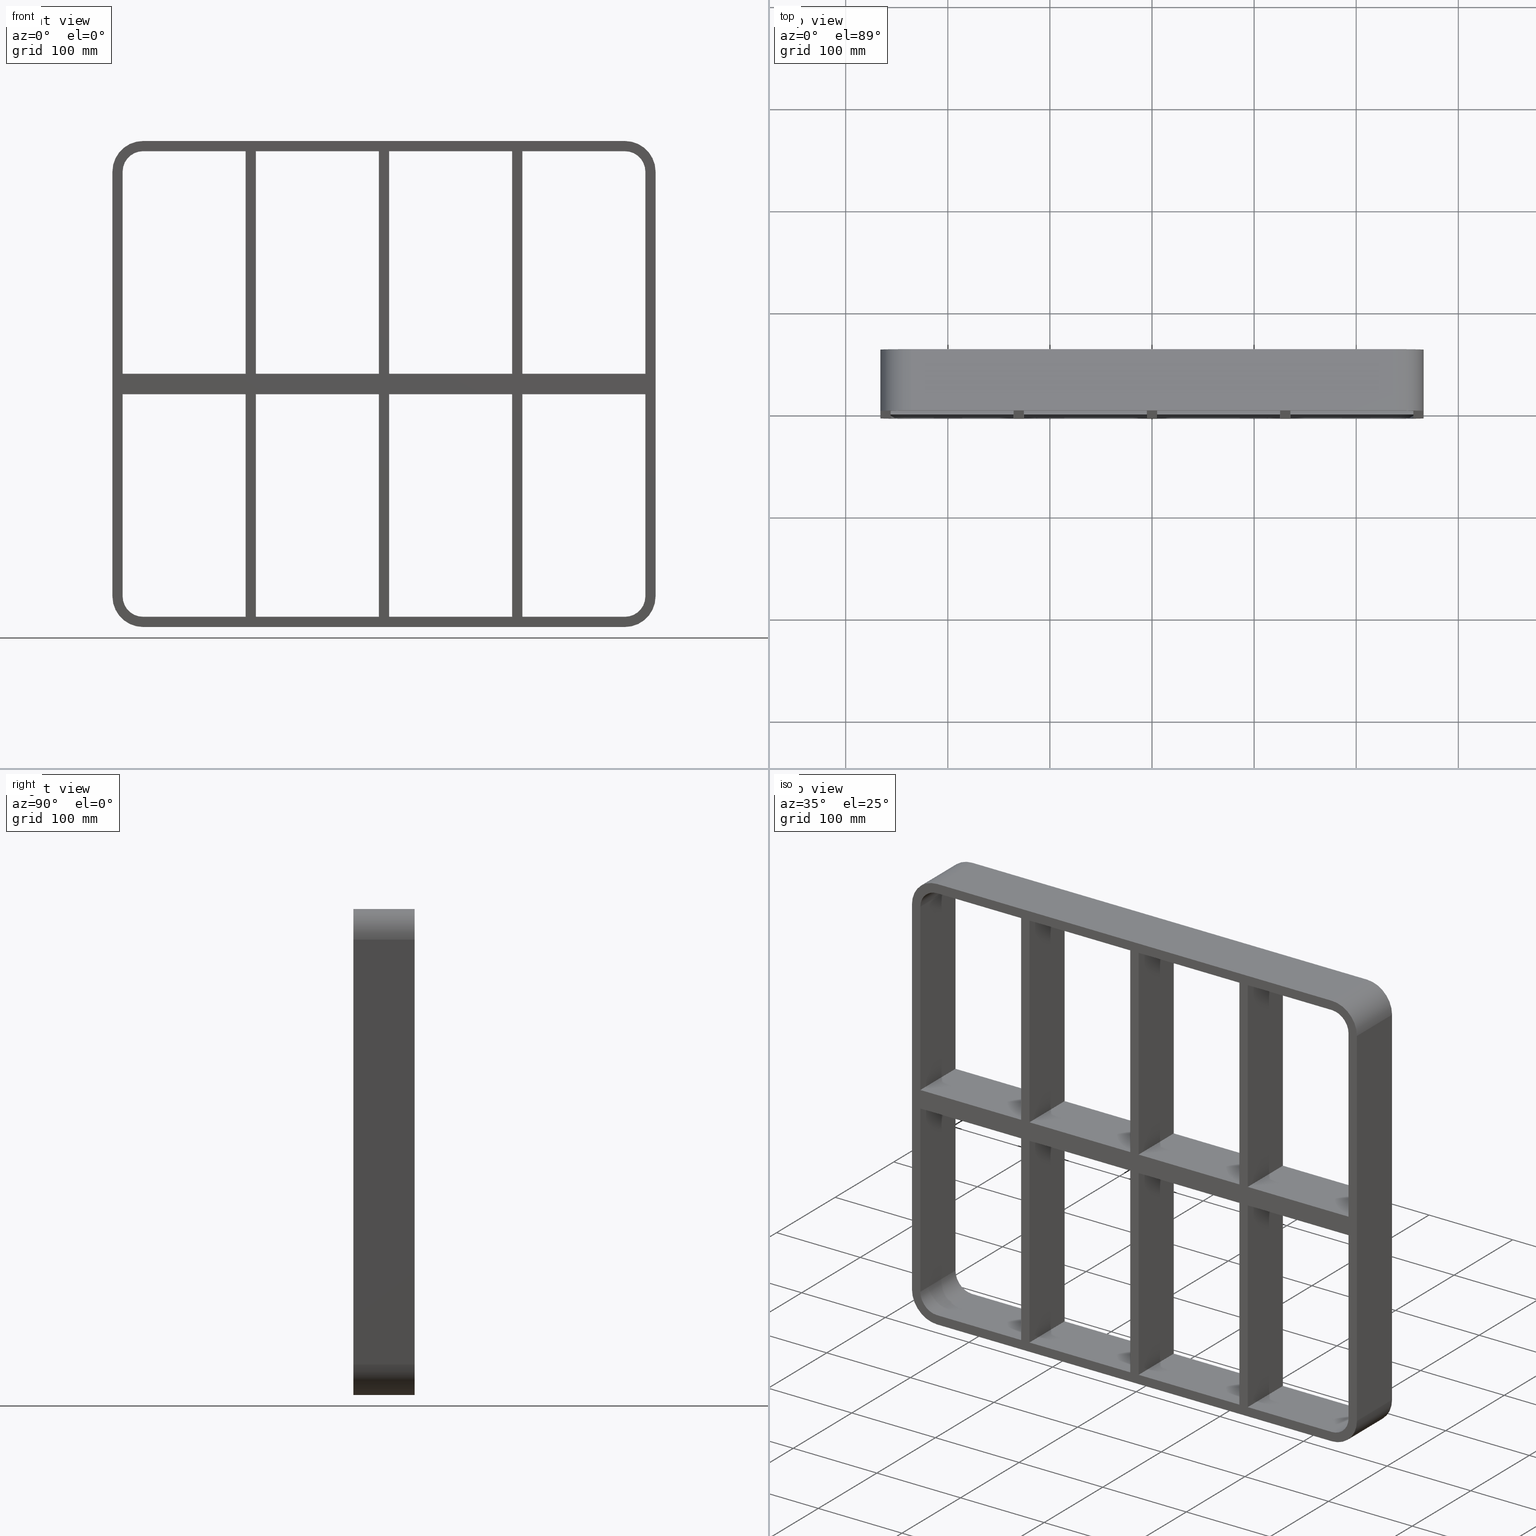
[diagram: canonical four-view strip — front | top / right | iso, engineering-drawing reading convention]
A machine part, canonical four-view strip (front | top / right | iso — engineering-drawing reading convention). The complete STEP part file that produces these views, byte-faithful:
ISO-10303-21;
HEADER;
/****************************************************************
 * Generated by software with PDElib inside                    *
 * PDElib Version v51a, created Wed 11/30/2011                  *
 * ITI Transcendata (http://www.transcendata.com/)              *
 ****************************************************************/
FILE_DESCRIPTION((''),'2;1');
FILE_NAME('N:\\Projects\\Ongoing_Projects\\12403 Transit Designer\\Product-data\\Product Data\\Transit designer Cad Generator\\CreatedFiles\\STEP\\SRCR20-6+6X4.stp','2014-10-31T10:27:27',(''),(''),'Autodesk Inventor 2013','Autodesk Inventor 2013','');
FILE_SCHEMA(('AUTOMOTIVE_DESIGN { 1 0 10303 214 1 1 1 1 }'));
ENDSEC;
DATA;
#5=APPLICATION_CONTEXT('automotive design');
#6=APPLICATION_PROTOCOL_DEFINITION('International Standard','automotive_design',2001,#5);
#7=PRODUCT_CONTEXT('',#5,'mechanical');
#8=PRODUCT('GH-ISO','GH-ISO',$,(#7));
#9=PRODUCT_RELATED_PRODUCT_CATEGORY('part',$,(#8));
#10=PRODUCT_DEFINITION_FORMATION('',$,#8);
#11=PRODUCT_DEFINITION_CONTEXT('part definition',#5,'design');
#12=PRODUCT_DEFINITION('',$,#10,#11);
#18=(NAMED_UNIT(*)PLANE_ANGLE_UNIT()SI_UNIT($,.RADIAN.));
#19=DIMENSIONAL_EXPONENTS(0.0,0.0,0.0,0.0,0.0,0.0,0.0);
#20=PLANE_ANGLE_MEASURE_WITH_UNIT(PLANE_ANGLE_MEASURE(0.0174532925),#18);
#24=(CONVERSION_BASED_UNIT('DEGREE',#20)NAMED_UNIT(#19)PLANE_ANGLE_UNIT());
#28=(NAMED_UNIT(*)SI_UNIT($,.STERADIAN.)SOLID_ANGLE_UNIT());
#32=(LENGTH_UNIT()NAMED_UNIT(*)SI_UNIT(.MILLI.,.METRE.));
#34=UNCERTAINTY_MEASURE_WITH_UNIT(LENGTH_MEASURE(0.01),#32,'DISTANCE_ACCURACY_VALUE','');
#36=(GEOMETRIC_REPRESENTATION_CONTEXT(3)GLOBAL_UNCERTAINTY_ASSIGNED_CONTEXT((#34))GLOBAL_UNIT_ASSIGNED_CONTEXT((#24,#28,#32))REPRESENTATION_CONTEXT('None','None'));
#37=AXIS2_PLACEMENT_3D('',#38,#39,#40);
#38=CARTESIAN_POINT('',(0.0,0.0,0.0));
#39=DIRECTION('',(0.0,0.0,1.0));
#40=DIRECTION('',(1.0,0.0,0.0));
#41=SHAPE_REPRESENTATION('',(#37),#36);
#42=PRODUCT_DEFINITION_SHAPE('','',#12);
#43=SHAPE_DEFINITION_REPRESENTATION(#42,#41);
#49=(NAMED_UNIT(*)PLANE_ANGLE_UNIT()SI_UNIT($,.RADIAN.));
#50=DIMENSIONAL_EXPONENTS(0.0,0.0,0.0,0.0,0.0,0.0,0.0);
#51=PLANE_ANGLE_MEASURE_WITH_UNIT(PLANE_ANGLE_MEASURE(0.0174532925),#49);
#55=(CONVERSION_BASED_UNIT('DEGREE',#51)NAMED_UNIT(#50)PLANE_ANGLE_UNIT());
#59=(NAMED_UNIT(*)SI_UNIT($,.STERADIAN.)SOLID_ANGLE_UNIT());
#63=(LENGTH_UNIT()NAMED_UNIT(*)SI_UNIT(.MILLI.,.METRE.));
#65=UNCERTAINTY_MEASURE_WITH_UNIT(LENGTH_MEASURE(0.000001),#63,'DISTANCE_ACCURACY_VALUE','');
#67=(GEOMETRIC_REPRESENTATION_CONTEXT(3)GLOBAL_UNCERTAINTY_ASSIGNED_CONTEXT((#65))GLOBAL_UNIT_ASSIGNED_CONTEXT((#55,#59,#63))REPRESENTATION_CONTEXT('','3D'));
#68=CARTESIAN_POINT('',(125.49999999999869,-3.0,-228.0));
#69=DIRECTION('',(-1.0,0.0,0.0));
#70=DIRECTION('',(0.0,0.0,1.0));
#71=AXIS2_PLACEMENT_3D('',#68,#69,#70);
#72=PLANE('',#71);
#73=CARTESIAN_POINT('',(125.49999999999862,-3.0,10.0));
#74=VERTEX_POINT('',#73);
#75=CARTESIAN_POINT('',(125.49999999999862,57.0,10.0));
#76=VERTEX_POINT('',#75);
#77=CARTESIAN_POINT('',(125.49999999999862,-3.0,10.0));
#78=DIRECTION('',(0.0,1.0,0.0));
#79=VECTOR('',#78,60.0);
#80=LINE('',#77,#79);
#81=EDGE_CURVE('',#74,#76,#80,.T.);
#82=ORIENTED_EDGE('',*,*,#81,.F.);
#83=CARTESIAN_POINT('',(125.49999999999856,-3.0,228.0));
#84=VERTEX_POINT('',#83);
#85=CARTESIAN_POINT('',(125.49999999999862,-3.0,10.0));
#86=DIRECTION('',(0.0,0.0,1.0));
#87=VECTOR('',#86,218.0);
#88=LINE('',#85,#87);
#89=EDGE_CURVE('',#74,#84,#88,.T.);
#90=ORIENTED_EDGE('',*,*,#89,.T.);
#91=CARTESIAN_POINT('',(125.49999999999856,57.0,228.0));
#92=VERTEX_POINT('',#91);
#93=CARTESIAN_POINT('',(125.49999999999856,57.000000000000007,228.0));
#94=DIRECTION('',(0.0,-1.0,0.0));
#95=VECTOR('',#94,60.000000000000007);
#96=LINE('',#93,#95);
#97=EDGE_CURVE('',#92,#84,#96,.T.);
#98=ORIENTED_EDGE('',*,*,#97,.F.);
#99=CARTESIAN_POINT('',(125.49999999999862,57.0,10.0));
#100=DIRECTION('',(0.0,0.0,1.0));
#101=VECTOR('',#100,218.0);
#102=LINE('',#99,#101);
#103=EDGE_CURVE('',#76,#92,#102,.T.);
#104=ORIENTED_EDGE('',*,*,#103,.F.);
#105=EDGE_LOOP('',(#82,#90,#98,#104));
#106=FACE_OUTER_BOUND('',#105,.T.);
#107=ADVANCED_FACE('',(#106),#72,.T.);
#108=CARTESIAN_POINT('',(125.49999999999869,-3.0,-228.0));
#109=DIRECTION('',(-1.0,0.0,0.0));
#110=DIRECTION('',(0.0,0.0,1.0));
#111=AXIS2_PLACEMENT_3D('',#108,#109,#110);
#112=PLANE('',#111);
#113=CARTESIAN_POINT('',(125.49999999999864,57.0,-10.000000000009308));
#114=VERTEX_POINT('',#113);
#115=CARTESIAN_POINT('',(125.49999999999864,-3.0,-10.000000000009308));
#116=VERTEX_POINT('',#115);
#117=CARTESIAN_POINT('',(125.49999999999862,57.0,-10.000000000009308));
#118=DIRECTION('',(0.0,-1.0,0.0));
#119=VECTOR('',#118,60.0);
#120=LINE('',#117,#119);
#121=EDGE_CURVE('',#114,#116,#120,.T.);
#122=ORIENTED_EDGE('',*,*,#121,.F.);
#123=CARTESIAN_POINT('',(125.49999999999869,57.0,-228.0));
#124=VERTEX_POINT('',#123);
#125=CARTESIAN_POINT('',(125.49999999999869,57.0,-228.0));
#126=DIRECTION('',(0.0,0.0,1.0));
#127=VECTOR('',#126,217.99999999999071);
#128=LINE('',#125,#127);
#129=EDGE_CURVE('',#124,#114,#128,.T.);
#130=ORIENTED_EDGE('',*,*,#129,.F.);
#131=CARTESIAN_POINT('',(125.49999999999869,-3.0,-228.0));
#132=VERTEX_POINT('',#131);
#133=CARTESIAN_POINT('',(125.49999999999869,-3.0,-228.0));
#134=DIRECTION('',(0.0,1.0,0.0));
#135=VECTOR('',#134,60.000000000000007);
#136=LINE('',#133,#135);
#137=EDGE_CURVE('',#132,#124,#136,.T.);
#138=ORIENTED_EDGE('',*,*,#137,.F.);
#139=CARTESIAN_POINT('',(125.49999999999869,-3.0,-228.0));
#140=DIRECTION('',(0.0,0.0,1.0));
#141=VECTOR('',#140,217.99999999999071);
#142=LINE('',#139,#141);
#143=EDGE_CURVE('',#132,#116,#142,.T.);
#144=ORIENTED_EDGE('',*,*,#143,.T.);
#145=EDGE_LOOP('',(#122,#130,#138,#144));
#146=FACE_OUTER_BOUND('',#145,.T.);
#147=ADVANCED_FACE('',(#146),#112,.T.);
#148=CARTESIAN_POINT('',(135.50000000000728,-3.0,228.0));
#149=DIRECTION('',(1.0,0.0,0.0));
#150=DIRECTION('',(0.0,0.0,-1.0));
#151=AXIS2_PLACEMENT_3D('',#148,#149,#150);
#152=PLANE('',#151);
#153=CARTESIAN_POINT('',(135.50000000000728,57.0,10.0));
#154=VERTEX_POINT('',#153);
#155=CARTESIAN_POINT('',(135.50000000000728,-3.0,10.0));
#156=VERTEX_POINT('',#155);
#157=CARTESIAN_POINT('',(135.50000000000728,57.0,10.0));
#158=DIRECTION('',(0.0,-1.0,0.0));
#159=VECTOR('',#158,60.0);
#160=LINE('',#157,#159);
#161=EDGE_CURVE('',#154,#156,#160,.T.);
#162=ORIENTED_EDGE('',*,*,#161,.F.);
#163=CARTESIAN_POINT('',(135.50000000000728,57.0,228.0));
#164=VERTEX_POINT('',#163);
#165=CARTESIAN_POINT('',(135.50000000000728,57.0,228.0));
#166=DIRECTION('',(0.0,0.0,-1.0));
#167=VECTOR('',#166,218.0);
#168=LINE('',#165,#167);
#169=EDGE_CURVE('',#164,#154,#168,.T.);
#170=ORIENTED_EDGE('',*,*,#169,.F.);
#171=CARTESIAN_POINT('',(135.50000000000728,-3.0,228.0));
#172=VERTEX_POINT('',#171);
#173=CARTESIAN_POINT('',(135.50000000000728,-3.0,228.0));
#174=DIRECTION('',(0.0,1.0,0.0));
#175=VECTOR('',#174,60.000000000000007);
#176=LINE('',#173,#175);
#177=EDGE_CURVE('',#172,#164,#176,.T.);
#178=ORIENTED_EDGE('',*,*,#177,.F.);
#179=CARTESIAN_POINT('',(135.50000000000728,-3.0,228.0));
#180=DIRECTION('',(0.0,0.0,-1.0));
#181=VECTOR('',#180,218.0);
#182=LINE('',#179,#181);
#183=EDGE_CURVE('',#172,#156,#182,.T.);
#184=ORIENTED_EDGE('',*,*,#183,.T.);
#185=EDGE_LOOP('',(#162,#170,#178,#184));
#186=FACE_OUTER_BOUND('',#185,.T.);
#187=ADVANCED_FACE('',(#186),#152,.T.);
#188=CARTESIAN_POINT('',(135.50000000000728,-3.0,228.0));
#189=DIRECTION('',(1.0,0.0,0.0));
#190=DIRECTION('',(0.0,0.0,-1.0));
#191=AXIS2_PLACEMENT_3D('',#188,#189,#190);
#192=PLANE('',#191);
#193=CARTESIAN_POINT('',(135.50000000000728,-3.0,-10.000000000009308));
#194=VERTEX_POINT('',#193);
#195=CARTESIAN_POINT('',(135.50000000000728,57.0,-10.000000000009308));
#196=VERTEX_POINT('',#195);
#197=CARTESIAN_POINT('',(135.50000000000728,-3.0,-10.000000000009308));
#198=DIRECTION('',(0.0,1.0,0.0));
#199=VECTOR('',#198,60.0);
#200=LINE('',#197,#199);
#201=EDGE_CURVE('',#194,#196,#200,.T.);
#202=ORIENTED_EDGE('',*,*,#201,.F.);
#203=CARTESIAN_POINT('',(135.50000000000728,-3.0,-227.99999999998451));
#204=VERTEX_POINT('',#203);
#205=CARTESIAN_POINT('',(135.50000000000728,-3.0,-10.000000000009322));
#206=DIRECTION('',(0.0,0.0,-1.0));
#207=VECTOR('',#206,217.99999999997522);
#208=LINE('',#205,#207);
#209=EDGE_CURVE('',#194,#204,#208,.T.);
#210=ORIENTED_EDGE('',*,*,#209,.T.);
#211=CARTESIAN_POINT('',(135.50000000000728,57.0,-227.99999999998451));
#212=VERTEX_POINT('',#211);
#213=CARTESIAN_POINT('',(135.50000000000728,57.000000000000007,-228.0));
#214=DIRECTION('',(0.0,-1.0,0.0));
#215=VECTOR('',#214,60.000000000000007);
#216=LINE('',#213,#215);
#217=EDGE_CURVE('',#212,#204,#216,.T.);
#218=ORIENTED_EDGE('',*,*,#217,.F.);
#219=CARTESIAN_POINT('',(135.50000000000728,57.0,-10.000000000009322));
#220=DIRECTION('',(0.0,0.0,-1.0));
#221=VECTOR('',#220,217.99999999997522);
#222=LINE('',#219,#221);
#223=EDGE_CURVE('',#196,#212,#222,.T.);
#224=ORIENTED_EDGE('',*,*,#223,.F.);
#225=EDGE_LOOP('',(#202,#210,#218,#224));
#226=FACE_OUTER_BOUND('',#225,.T.);
#227=ADVANCED_FACE('',(#226),#192,.T.);
#228=CARTESIAN_POINT('',(-5.000000000001315,-3.0,-228.0));
#229=DIRECTION('',(-1.0,0.0,0.0));
#230=DIRECTION('',(0.0,0.0,1.0));
#231=AXIS2_PLACEMENT_3D('',#228,#229,#230);
#232=PLANE('',#231);
#233=CARTESIAN_POINT('',(-5.000000000001379,-3.0,10.0));
#234=VERTEX_POINT('',#233);
#235=CARTESIAN_POINT('',(-5.000000000001379,57.0,10.0));
#236=VERTEX_POINT('',#235);
#237=CARTESIAN_POINT('',(-5.000000000001382,-3.0,10.0));
#238=DIRECTION('',(0.0,1.0,0.0));
#239=VECTOR('',#238,60.0);
#240=LINE('',#237,#239);
#241=EDGE_CURVE('',#234,#236,#240,.T.);
#242=ORIENTED_EDGE('',*,*,#241,.F.);
#243=CARTESIAN_POINT('',(-5.000000000001439,-3.0,228.0));
#244=VERTEX_POINT('',#243);
#245=CARTESIAN_POINT('',(-5.000000000001379,-3.0,10.0));
#246=DIRECTION('',(0.0,0.0,1.0));
#247=VECTOR('',#246,218.0);
#248=LINE('',#245,#247);
#249=EDGE_CURVE('',#234,#244,#248,.T.);
#250=ORIENTED_EDGE('',*,*,#249,.T.);
#251=CARTESIAN_POINT('',(-5.000000000001439,57.0,228.0));
#252=VERTEX_POINT('',#251);
#253=CARTESIAN_POINT('',(-5.00000000000143,57.000000000000007,228.0));
#254=DIRECTION('',(0.0,-1.0,0.0));
#255=VECTOR('',#254,60.000000000000007);
#256=LINE('',#253,#255);
#257=EDGE_CURVE('',#252,#244,#256,.T.);
#258=ORIENTED_EDGE('',*,*,#257,.F.);
#259=CARTESIAN_POINT('',(-5.000000000001379,57.0,10.0));
#260=DIRECTION('',(0.0,0.0,1.0));
#261=VECTOR('',#260,218.0);
#262=LINE('',#259,#261);
#263=EDGE_CURVE('',#236,#252,#262,.T.);
#264=ORIENTED_EDGE('',*,*,#263,.F.);
#265=EDGE_LOOP('',(#242,#250,#258,#264));
#266=FACE_OUTER_BOUND('',#265,.T.);
#267=ADVANCED_FACE('',(#266),#232,.T.);
#268=CARTESIAN_POINT('',(-5.000000000001315,-3.0,-228.0));
#269=DIRECTION('',(-1.0,0.0,0.0));
#270=DIRECTION('',(0.0,0.0,1.0));
#271=AXIS2_PLACEMENT_3D('',#268,#269,#270);
#272=PLANE('',#271);
#273=CARTESIAN_POINT('',(-5.000000000001375,57.0,-10.000000000009308));
#274=VERTEX_POINT('',#273);
#275=CARTESIAN_POINT('',(-5.000000000001375,-3.0,-10.000000000009308));
#276=VERTEX_POINT('',#275);
#277=CARTESIAN_POINT('',(-5.00000000000138,57.0,-10.000000000009344));
#278=DIRECTION('',(0.0,-1.0,0.0));
#279=VECTOR('',#278,60.0);
#280=LINE('',#277,#279);
#281=EDGE_CURVE('',#274,#276,#280,.T.);
#282=ORIENTED_EDGE('',*,*,#281,.F.);
#283=CARTESIAN_POINT('',(-5.000000000001315,57.0,-228.0));
#284=VERTEX_POINT('',#283);
#285=CARTESIAN_POINT('',(-5.000000000001315,57.0,-228.0));
#286=DIRECTION('',(0.0,0.0,1.0));
#287=VECTOR('',#286,217.99999999999071);
#288=LINE('',#285,#287);
#289=EDGE_CURVE('',#284,#274,#288,.T.);
#290=ORIENTED_EDGE('',*,*,#289,.F.);
#291=CARTESIAN_POINT('',(-5.000000000001315,-3.0,-228.0));
#292=VERTEX_POINT('',#291);
#293=CARTESIAN_POINT('',(-5.000000000001315,-3.0,-228.0));
#294=DIRECTION('',(0.0,1.0,0.0));
#295=VECTOR('',#294,60.000000000000007);
#296=LINE('',#293,#295);
#297=EDGE_CURVE('',#292,#284,#296,.T.);
#298=ORIENTED_EDGE('',*,*,#297,.F.);
#299=CARTESIAN_POINT('',(-5.000000000001315,-3.0,-228.0));
#300=DIRECTION('',(0.0,0.0,1.0));
#301=VECTOR('',#300,217.99999999999071);
#302=LINE('',#299,#301);
#303=EDGE_CURVE('',#292,#276,#302,.T.);
#304=ORIENTED_EDGE('',*,*,#303,.T.);
#305=EDGE_LOOP('',(#282,#290,#298,#304));
#306=FACE_OUTER_BOUND('',#305,.T.);
#307=ADVANCED_FACE('',(#306),#272,.T.);
#308=CARTESIAN_POINT('',(5.000000000007283,-3.0,228.0));
#309=DIRECTION('',(1.0,0.0,0.0));
#310=DIRECTION('',(0.0,0.0,-1.0));
#311=AXIS2_PLACEMENT_3D('',#308,#309,#310);
#312=PLANE('',#311);
#313=CARTESIAN_POINT('',(5.000000000007283,57.0,10.0));
#314=VERTEX_POINT('',#313);
#315=CARTESIAN_POINT('',(5.000000000007283,-3.0,10.0));
#316=VERTEX_POINT('',#315);
#317=CARTESIAN_POINT('',(5.000000000007283,57.0,10.0));
#318=DIRECTION('',(0.0,-1.0,0.0));
#319=VECTOR('',#318,60.0);
#320=LINE('',#317,#319);
#321=EDGE_CURVE('',#314,#316,#320,.T.);
#322=ORIENTED_EDGE('',*,*,#321,.F.);
#323=CARTESIAN_POINT('',(5.000000000007283,57.0,228.0));
#324=VERTEX_POINT('',#323);
#325=CARTESIAN_POINT('',(5.000000000007283,57.0,228.0));
#326=DIRECTION('',(0.0,0.0,-1.0));
#327=VECTOR('',#326,218.0);
#328=LINE('',#325,#327);
#329=EDGE_CURVE('',#324,#314,#328,.T.);
#330=ORIENTED_EDGE('',*,*,#329,.F.);
#331=CARTESIAN_POINT('',(5.000000000007283,-3.0,228.0));
#332=VERTEX_POINT('',#331);
#333=CARTESIAN_POINT('',(5.000000000007283,-3.0,228.0));
#334=DIRECTION('',(0.0,1.0,0.0));
#335=VECTOR('',#334,60.000000000000007);
#336=LINE('',#333,#335);
#337=EDGE_CURVE('',#332,#324,#336,.T.);
#338=ORIENTED_EDGE('',*,*,#337,.F.);
#339=CARTESIAN_POINT('',(5.000000000007283,-3.0,228.0));
#340=DIRECTION('',(0.0,0.0,-1.0));
#341=VECTOR('',#340,218.0);
#342=LINE('',#339,#341);
#343=EDGE_CURVE('',#332,#316,#342,.T.);
#344=ORIENTED_EDGE('',*,*,#343,.T.);
#345=EDGE_LOOP('',(#322,#330,#338,#344));
#346=FACE_OUTER_BOUND('',#345,.T.);
#347=ADVANCED_FACE('',(#346),#312,.T.);
#348=CARTESIAN_POINT('',(5.000000000007283,-3.0,228.0));
#349=DIRECTION('',(1.0,0.0,0.0));
#350=DIRECTION('',(0.0,0.0,-1.0));
#351=AXIS2_PLACEMENT_3D('',#348,#349,#350);
#352=PLANE('',#351);
#353=CARTESIAN_POINT('',(5.000000000007283,-3.0,-10.000000000009308));
#354=VERTEX_POINT('',#353);
#355=CARTESIAN_POINT('',(5.000000000007283,57.0,-10.000000000009308));
#356=VERTEX_POINT('',#355);
#357=CARTESIAN_POINT('',(5.000000000007283,-3.0,-10.000000000009326));
#358=DIRECTION('',(0.0,1.0,0.0));
#359=VECTOR('',#358,60.0);
#360=LINE('',#357,#359);
#361=EDGE_CURVE('',#354,#356,#360,.T.);
#362=ORIENTED_EDGE('',*,*,#361,.F.);
#363=CARTESIAN_POINT('',(5.000000000007283,-3.0,-227.99999999998451));
#364=VERTEX_POINT('',#363);
#365=CARTESIAN_POINT('',(5.000000000007283,-3.0,-10.000000000009322));
#366=DIRECTION('',(0.0,0.0,-1.0));
#367=VECTOR('',#366,217.99999999997522);
#368=LINE('',#365,#367);
#369=EDGE_CURVE('',#354,#364,#368,.T.);
#370=ORIENTED_EDGE('',*,*,#369,.T.);
#371=CARTESIAN_POINT('',(5.000000000007283,57.0,-227.99999999998451));
#372=VERTEX_POINT('',#371);
#373=CARTESIAN_POINT('',(5.000000000007283,57.000000000000007,-228.0));
#374=DIRECTION('',(0.0,-1.0,0.0));
#375=VECTOR('',#374,60.000000000000007);
#376=LINE('',#373,#375);
#377=EDGE_CURVE('',#372,#364,#376,.T.);
#378=ORIENTED_EDGE('',*,*,#377,.F.);
#379=CARTESIAN_POINT('',(5.000000000007283,57.0,-10.000000000009322));
#380=DIRECTION('',(0.0,0.0,-1.0));
#381=VECTOR('',#380,217.99999999997522);
#382=LINE('',#379,#381);
#383=EDGE_CURVE('',#356,#372,#382,.T.);
#384=ORIENTED_EDGE('',*,*,#383,.F.);
#385=EDGE_LOOP('',(#362,#370,#378,#384));
#386=FACE_OUTER_BOUND('',#385,.T.);
#387=ADVANCED_FACE('',(#386),#352,.T.);
#388=CARTESIAN_POINT('',(256.00000000000011,0.0,-228.0));
#389=DIRECTION('',(0.0,0.0,-1.0));
#390=DIRECTION('',(-1.0,0.0,0.0));
#391=AXIS2_PLACEMENT_3D('',#388,#389,#390);
#392=PLANE('',#391);
#393=ORIENTED_EDGE('',*,*,#297,.T.);
#394=CARTESIAN_POINT('',(-125.49999999999272,57.0,-227.99999999998451));
#395=VERTEX_POINT('',#394);
#396=CARTESIAN_POINT('',(-125.49999999999272,57.0,-228.0));
#397=DIRECTION('',(1.0,0.0,0.0));
#398=VECTOR('',#397,120.49999999999142);
#399=LINE('',#396,#398);
#400=EDGE_CURVE('',#395,#284,#399,.T.);
#401=ORIENTED_EDGE('',*,*,#400,.F.);
#402=CARTESIAN_POINT('',(-125.49999999999272,-3.0,-227.99999999998451));
#403=VERTEX_POINT('',#402);
#404=CARTESIAN_POINT('',(-125.49999999999272,57.000000000000007,-228.0));
#405=DIRECTION('',(0.0,-1.0,0.0));
#406=VECTOR('',#405,60.000000000000007);
#407=LINE('',#404,#406);
#408=EDGE_CURVE('',#395,#403,#407,.T.);
#409=ORIENTED_EDGE('',*,*,#408,.T.);
#410=CARTESIAN_POINT('',(-5.000000000001307,-3.0,-228.0));
#411=DIRECTION('',(-1.0,0.0,0.0));
#412=VECTOR('',#411,120.49999999999142);
#413=LINE('',#410,#412);
#414=EDGE_CURVE('',#292,#403,#413,.T.);
#415=ORIENTED_EDGE('',*,*,#414,.F.);
#416=EDGE_LOOP('',(#393,#401,#409,#415));
#417=FACE_OUTER_BOUND('',#416,.T.);
#418=ADVANCED_FACE('',(#417),#392,.F.);
#419=CARTESIAN_POINT('',(256.00000000000011,0.0,-228.0));
#420=DIRECTION('',(0.0,0.0,-1.0));
#421=DIRECTION('',(-1.0,0.0,0.0));
#422=AXIS2_PLACEMENT_3D('',#419,#420,#421);
#423=PLANE('',#422);
#424=ORIENTED_EDGE('',*,*,#137,.T.);
#425=CARTESIAN_POINT('',(5.000000000007304,57.0,-228.0));
#426=DIRECTION('',(1.0,0.0,0.0));
#427=VECTOR('',#426,120.4999999999914);
#428=LINE('',#425,#427);
#429=EDGE_CURVE('',#372,#124,#428,.T.);
#430=ORIENTED_EDGE('',*,*,#429,.F.);
#431=ORIENTED_EDGE('',*,*,#377,.T.);
#432=CARTESIAN_POINT('',(125.49999999999871,-3.0,-228.0));
#433=DIRECTION('',(-1.0,0.0,0.0));
#434=VECTOR('',#433,120.4999999999914);
#435=LINE('',#432,#434);
#436=EDGE_CURVE('',#132,#364,#435,.T.);
#437=ORIENTED_EDGE('',*,*,#436,.F.);
#438=EDGE_LOOP('',(#424,#430,#431,#437));
#439=FACE_OUTER_BOUND('',#438,.T.);
#440=ADVANCED_FACE('',(#439),#423,.F.);
#441=CARTESIAN_POINT('',(256.00000000000011,0.0,-228.0));
#442=DIRECTION('',(0.0,0.0,-1.0));
#443=DIRECTION('',(-1.0,0.0,0.0));
#444=AXIS2_PLACEMENT_3D('',#441,#442,#443);
#445=PLANE('',#444);
#446=ORIENTED_EDGE('',*,*,#217,.T.);
#447=CARTESIAN_POINT('',(236.00000000000009,-3.0,-228.0));
#448=VERTEX_POINT('',#447);
#449=CARTESIAN_POINT('',(236.00000000000011,-3.0,-228.0));
#450=DIRECTION('',(-1.0,0.0,0.0));
#451=VECTOR('',#450,100.49999999999281);
#452=LINE('',#449,#451);
#453=EDGE_CURVE('',#448,#204,#452,.T.);
#454=ORIENTED_EDGE('',*,*,#453,.F.);
#455=CARTESIAN_POINT('',(236.00000000000009,57.0,-228.0));
#456=VERTEX_POINT('',#455);
#457=CARTESIAN_POINT('',(236.00000000000009,57.0,-228.0));
#458=DIRECTION('',(0.0,-1.0,0.0));
#459=VECTOR('',#458,60.0);
#460=LINE('',#457,#459);
#461=EDGE_CURVE('',#456,#448,#460,.T.);
#462=ORIENTED_EDGE('',*,*,#461,.F.);
#463=CARTESIAN_POINT('',(135.5000000000073,57.0,-228.0));
#464=DIRECTION('',(1.0,0.0,0.0));
#465=VECTOR('',#464,100.49999999999281);
#466=LINE('',#463,#465);
#467=EDGE_CURVE('',#212,#456,#466,.T.);
#468=ORIENTED_EDGE('',*,*,#467,.F.);
#469=EDGE_LOOP('',(#446,#454,#462,#468));
#470=FACE_OUTER_BOUND('',#469,.T.);
#471=ADVANCED_FACE('',(#470),#445,.F.);
#472=CARTESIAN_POINT('',(0.0,-3.0,0.0));
#473=DIRECTION('',(0.0,1.0,0.0));
#474=DIRECTION('',(0.0,0.0,1.0));
#475=AXIS2_PLACEMENT_3D('',#472,#473,#474);
#476=PLANE('',#475);
#477=CARTESIAN_POINT('',(266.0,-3.0,-208.0));
#478=VERTEX_POINT('',#477);
#479=CARTESIAN_POINT('',(236.0,-3.0,-238.0));
#480=VERTEX_POINT('',#479);
#481=CARTESIAN_POINT('',(236.0,-3.0,-208.0));
#482=DIRECTION('',(0.0,1.0,0.0));
#483=DIRECTION('',(0.707106781186547,0.0,-0.707106781186547));
#484=AXIS2_PLACEMENT_3D('',#481,#482,#483);
#485=CIRCLE('',#484,30.0);
#486=EDGE_CURVE('',#478,#480,#485,.T.);
#487=ORIENTED_EDGE('',*,*,#486,.F.);
#488=CARTESIAN_POINT('',(266.0,-3.0,208.0));
#489=VERTEX_POINT('',#488);
#490=CARTESIAN_POINT('',(266.0,-3.0,-208.0));
#491=DIRECTION('',(0.0,0.0,1.0));
#492=VECTOR('',#491,416.0);
#493=LINE('',#490,#492);
#494=EDGE_CURVE('',#478,#489,#493,.T.);
#495=ORIENTED_EDGE('',*,*,#494,.T.);
#496=CARTESIAN_POINT('',(236.0,-3.0,238.0));
#497=VERTEX_POINT('',#496);
#498=CARTESIAN_POINT('',(236.0,-3.0,208.0));
#499=DIRECTION('',(0.0,1.0,0.0));
#500=DIRECTION('',(0.707106781186547,0.0,0.707106781186547));
#501=AXIS2_PLACEMENT_3D('',#498,#499,#500);
#502=CIRCLE('',#501,30.0);
#503=EDGE_CURVE('',#497,#489,#502,.T.);
#504=ORIENTED_EDGE('',*,*,#503,.F.);
#505=CARTESIAN_POINT('',(-236.0,-3.0,238.0));
#506=VERTEX_POINT('',#505);
#507=CARTESIAN_POINT('',(236.0,-3.0,238.0));
#508=DIRECTION('',(-1.0,0.0,0.0));
#509=VECTOR('',#508,472.0);
#510=LINE('',#507,#509);
#511=EDGE_CURVE('',#497,#506,#510,.T.);
#512=ORIENTED_EDGE('',*,*,#511,.T.);
#513=CARTESIAN_POINT('',(-266.0,-3.0,208.0));
#514=VERTEX_POINT('',#513);
#515=CARTESIAN_POINT('',(-236.0,-3.0,208.0));
#516=DIRECTION('',(0.0,1.0,0.0));
#517=DIRECTION('',(-0.707106781186547,0.0,0.707106781186547));
#518=AXIS2_PLACEMENT_3D('',#515,#516,#517);
#519=CIRCLE('',#518,30.0);
#520=EDGE_CURVE('',#514,#506,#519,.T.);
#521=ORIENTED_EDGE('',*,*,#520,.F.);
#522=CARTESIAN_POINT('',(-266.0,-3.0,-208.0));
#523=VERTEX_POINT('',#522);
#524=CARTESIAN_POINT('',(-266.0,-3.0,208.0));
#525=DIRECTION('',(0.0,0.0,-1.0));
#526=VECTOR('',#525,416.0);
#527=LINE('',#524,#526);
#528=EDGE_CURVE('',#514,#523,#527,.T.);
#529=ORIENTED_EDGE('',*,*,#528,.T.);
#530=CARTESIAN_POINT('',(-236.0,-3.0,-238.0));
#531=VERTEX_POINT('',#530);
#532=CARTESIAN_POINT('',(-236.0,-3.0,-208.0));
#533=DIRECTION('',(0.0,1.0,0.0));
#534=DIRECTION('',(-0.707106781186547,0.0,-0.707106781186547));
#535=AXIS2_PLACEMENT_3D('',#532,#533,#534);
#536=CIRCLE('',#535,30.0);
#537=EDGE_CURVE('',#531,#523,#536,.T.);
#538=ORIENTED_EDGE('',*,*,#537,.F.);
#539=CARTESIAN_POINT('',(-236.0,-3.0,-238.0));
#540=DIRECTION('',(1.0,0.0,0.0));
#541=VECTOR('',#540,472.0);
#542=LINE('',#539,#541);
#543=EDGE_CURVE('',#531,#480,#542,.T.);
#544=ORIENTED_EDGE('',*,*,#543,.T.);
#545=EDGE_LOOP('',(#487,#495,#504,#512,#521,#529,#538,#544));
#546=FACE_OUTER_BOUND('',#545,.T.);
#547=ORIENTED_EDGE('',*,*,#436,.T.);
#548=ORIENTED_EDGE('',*,*,#369,.F.);
#549=CARTESIAN_POINT('',(125.49999999999864,-3.0,-10.000000000009313));
#550=DIRECTION('',(-1.0,0.0,0.0));
#551=VECTOR('',#550,120.49999999999136);
#552=LINE('',#549,#551);
#553=EDGE_CURVE('',#116,#354,#552,.T.);
#554=ORIENTED_EDGE('',*,*,#553,.F.);
#555=ORIENTED_EDGE('',*,*,#143,.F.);
#556=EDGE_LOOP('',(#547,#548,#554,#555));
#557=FACE_BOUND('',#556,.T.);
#558=CARTESIAN_POINT('',(5.000000000007304,-3.0,10.0));
#559=DIRECTION('',(1.0,0.0,0.0));
#560=VECTOR('',#559,120.4999999999913);
#561=LINE('',#558,#560);
#562=EDGE_CURVE('',#316,#74,#561,.T.);
#563=ORIENTED_EDGE('',*,*,#562,.F.);
#564=ORIENTED_EDGE('',*,*,#343,.F.);
#565=CARTESIAN_POINT('',(5.000000000007276,-3.0,228.0));
#566=DIRECTION('',(1.0,0.0,0.0));
#567=VECTOR('',#566,120.4999999999913);
#568=LINE('',#565,#567);
#569=EDGE_CURVE('',#332,#84,#568,.T.);
#570=ORIENTED_EDGE('',*,*,#569,.T.);
#571=ORIENTED_EDGE('',*,*,#89,.F.);
#572=EDGE_LOOP('',(#563,#564,#570,#571));
#573=FACE_BOUND('',#572,.T.);
#574=ORIENTED_EDGE('',*,*,#414,.T.);
#575=CARTESIAN_POINT('',(-125.49999999999272,-3.0,-10.000000000009358));
#576=VERTEX_POINT('',#575);
#577=CARTESIAN_POINT('',(-125.49999999999272,-3.0,-10.000000000009351));
#578=DIRECTION('',(0.0,0.0,-1.0));
#579=VECTOR('',#578,217.99999999997519);
#580=LINE('',#577,#579);
#581=EDGE_CURVE('',#576,#403,#580,.T.);
#582=ORIENTED_EDGE('',*,*,#581,.F.);
#583=CARTESIAN_POINT('',(-5.000000000001364,-3.0,-10.000000000009335));
#584=DIRECTION('',(-1.0,0.0,0.0));
#585=VECTOR('',#584,120.49999999999136);
#586=LINE('',#583,#585);
#587=EDGE_CURVE('',#276,#576,#586,.T.);
#588=ORIENTED_EDGE('',*,*,#587,.F.);
#589=ORIENTED_EDGE('',*,*,#303,.F.);
#590=EDGE_LOOP('',(#574,#582,#588,#589));
#591=FACE_BOUND('',#590,.T.);
#592=CARTESIAN_POINT('',(-125.49999999999272,-3.0,10.0));
#593=VERTEX_POINT('',#592);
#594=CARTESIAN_POINT('',(-125.49999999999272,-3.0,10.0));
#595=DIRECTION('',(1.0,0.0,0.0));
#596=VECTOR('',#595,120.49999999999133);
#597=LINE('',#594,#596);
#598=EDGE_CURVE('',#593,#234,#597,.T.);
#599=ORIENTED_EDGE('',*,*,#598,.F.);
#600=CARTESIAN_POINT('',(-125.49999999999272,-3.0,228.0));
#601=VERTEX_POINT('',#600);
#602=CARTESIAN_POINT('',(-125.49999999999272,-3.0,228.0));
#603=DIRECTION('',(0.0,0.0,-1.0));
#604=VECTOR('',#603,218.0);
#605=LINE('',#602,#604);
#606=EDGE_CURVE('',#601,#593,#605,.T.);
#607=ORIENTED_EDGE('',*,*,#606,.F.);
#608=CARTESIAN_POINT('',(-125.49999999999272,-3.0,228.0));
#609=DIRECTION('',(1.0,0.0,0.0));
#610=VECTOR('',#609,120.49999999999129);
#611=LINE('',#608,#610);
#612=EDGE_CURVE('',#601,#244,#611,.T.);
#613=ORIENTED_EDGE('',*,*,#612,.T.);
#614=ORIENTED_EDGE('',*,*,#249,.F.);
#615=EDGE_LOOP('',(#599,#607,#613,#614));
#616=FACE_BOUND('',#615,.T.);
#617=ORIENTED_EDGE('',*,*,#183,.F.);
#618=CARTESIAN_POINT('',(236.00000000000006,-3.0,228.0));
#619=VERTEX_POINT('',#618);
#620=CARTESIAN_POINT('',(135.50000000000728,-3.0,228.0));
#621=DIRECTION('',(1.0,0.0,0.0));
#622=VECTOR('',#621,100.49999999999278);
#623=LINE('',#620,#622);
#624=EDGE_CURVE('',#172,#619,#623,.T.);
#625=ORIENTED_EDGE('',*,*,#624,.T.);
#626=CARTESIAN_POINT('',(256.00000000000011,-3.0,208.0));
#627=VERTEX_POINT('',#626);
#628=CARTESIAN_POINT('',(236.00000000000009,-3.0,208.0));
#629=DIRECTION('',(0.0,-1.0,0.0));
#630=DIRECTION('',(0.707106781186547,0.0,0.707106781186547));
#631=AXIS2_PLACEMENT_3D('',#628,#629,#630);
#632=CIRCLE('',#631,19.999999999999996);
#633=EDGE_CURVE('',#627,#619,#632,.T.);
#634=ORIENTED_EDGE('',*,*,#633,.F.);
#635=CARTESIAN_POINT('',(255.99999999999994,-3.0,10.0));
#636=VERTEX_POINT('',#635);
#637=CARTESIAN_POINT('',(256.00000000000011,-3.0,208.0));
#638=DIRECTION('',(0.0,0.0,-1.0));
#639=VECTOR('',#638,198.0);
#640=LINE('',#637,#639);
#641=EDGE_CURVE('',#627,#636,#640,.T.);
#642=ORIENTED_EDGE('',*,*,#641,.T.);
#643=CARTESIAN_POINT('',(135.5000000000073,-3.0,10.0));
#644=DIRECTION('',(1.0,0.0,0.0));
#645=VECTOR('',#644,120.49999999999267);
#646=LINE('',#643,#645);
#647=EDGE_CURVE('',#156,#636,#646,.T.);
#648=ORIENTED_EDGE('',*,*,#647,.F.);
#649=EDGE_LOOP('',(#617,#625,#634,#642,#648));
#650=FACE_BOUND('',#649,.T.);
#651=ORIENTED_EDGE('',*,*,#209,.F.);
#652=CARTESIAN_POINT('',(256.00000000000364,-3.0,-10.00000000000929));
#653=VERTEX_POINT('',#652);
#654=CARTESIAN_POINT('',(256.00000000000364,-3.0,-10.00000000000929));
#655=DIRECTION('',(-1.0,0.0,0.0));
#656=VECTOR('',#655,120.49999999999636);
#657=LINE('',#654,#656);
#658=EDGE_CURVE('',#653,#194,#657,.T.);
#659=ORIENTED_EDGE('',*,*,#658,.F.);
#660=CARTESIAN_POINT('',(256.00000000000011,-3.0,-208.00000000000006));
#661=VERTEX_POINT('',#660);
#662=CARTESIAN_POINT('',(256.00000000000011,-3.0,-10.000000000009294));
#663=DIRECTION('',(0.0,0.0,-1.0));
#664=VECTOR('',#663,197.99999999999071);
#665=LINE('',#662,#664);
#666=EDGE_CURVE('',#653,#661,#665,.T.);
#667=ORIENTED_EDGE('',*,*,#666,.T.);
#668=CARTESIAN_POINT('',(236.00000000000009,-3.0,-208.0));
#669=DIRECTION('',(0.0,-1.0,0.0));
#670=DIRECTION('',(0.707106781186547,0.0,-0.707106781186547));
#671=AXIS2_PLACEMENT_3D('',#668,#669,#670);
#672=CIRCLE('',#671,19.999999999999996);
#673=EDGE_CURVE('',#448,#661,#672,.T.);
#674=ORIENTED_EDGE('',*,*,#673,.F.);
#675=ORIENTED_EDGE('',*,*,#453,.T.);
#676=EDGE_LOOP('',(#651,#659,#667,#674,#675));
#677=FACE_BOUND('',#676,.T.);
#678=CARTESIAN_POINT('',(-255.9999999999998,-3.0,10.0));
#679=VERTEX_POINT('',#678);
#680=CARTESIAN_POINT('',(-256.0,-3.0,208.00000000000006));
#681=VERTEX_POINT('',#680);
#682=CARTESIAN_POINT('',(-256.0,-3.0,10.0));
#683=DIRECTION('',(0.0,0.0,1.0));
#684=VECTOR('',#683,198.0);
#685=LINE('',#682,#684);
#686=EDGE_CURVE('',#679,#681,#685,.T.);
#687=ORIENTED_EDGE('',*,*,#686,.T.);
#688=CARTESIAN_POINT('',(-236.0,-3.0,228.0));
#689=VERTEX_POINT('',#688);
#690=CARTESIAN_POINT('',(-236.0,-3.0,208.0));
#691=DIRECTION('',(0.0,-1.0,0.0));
#692=DIRECTION('',(-0.707106781186547,0.0,0.707106781186547));
#693=AXIS2_PLACEMENT_3D('',#690,#691,#692);
#694=CIRCLE('',#693,19.999999999999996);
#695=EDGE_CURVE('',#689,#681,#694,.T.);
#696=ORIENTED_EDGE('',*,*,#695,.F.);
#697=CARTESIAN_POINT('',(-135.50000000000145,-3.0,228.0));
#698=VERTEX_POINT('',#697);
#699=CARTESIAN_POINT('',(-236.0,-3.0,228.0));
#700=DIRECTION('',(1.0,0.0,0.0));
#701=VECTOR('',#700,100.49999999999855);
#702=LINE('',#699,#701);
#703=EDGE_CURVE('',#689,#698,#702,.T.);
#704=ORIENTED_EDGE('',*,*,#703,.T.);
#705=CARTESIAN_POINT('',(-135.50000000000139,-3.0,10.0));
#706=VERTEX_POINT('',#705);
#707=CARTESIAN_POINT('',(-135.50000000000136,-3.0,10.0));
#708=DIRECTION('',(0.0,0.0,1.0));
#709=VECTOR('',#708,218.0);
#710=LINE('',#707,#709);
#711=EDGE_CURVE('',#706,#698,#710,.T.);
#712=ORIENTED_EDGE('',*,*,#711,.F.);
#713=CARTESIAN_POINT('',(-255.9999999999998,-3.0,10.0));
#714=DIRECTION('',(1.0,0.0,0.0));
#715=VECTOR('',#714,120.49999999999841);
#716=LINE('',#713,#715);
#717=EDGE_CURVE('',#679,#706,#716,.T.);
#718=ORIENTED_EDGE('',*,*,#717,.F.);
#719=EDGE_LOOP('',(#687,#696,#704,#712,#718));
#720=FACE_BOUND('',#719,.T.);
#721=CARTESIAN_POINT('',(-135.50000000000139,-3.0,-10.00000000000936));
#722=VERTEX_POINT('',#721);
#723=CARTESIAN_POINT('',(-255.99999999999977,-3.0,-10.000000000009379));
#724=VERTEX_POINT('',#723);
#725=CARTESIAN_POINT('',(-135.50000000000136,-3.0,-10.000000000009358));
#726=DIRECTION('',(-1.0,0.0,0.0));
#727=VECTOR('',#726,120.49999999999841);
#728=LINE('',#725,#727);
#729=EDGE_CURVE('',#722,#724,#728,.T.);
#730=ORIENTED_EDGE('',*,*,#729,.F.);
#731=CARTESIAN_POINT('',(-135.50000000000131,-3.0,-228.0));
#732=VERTEX_POINT('',#731);
#733=CARTESIAN_POINT('',(-135.50000000000131,-3.0,-228.0));
#734=DIRECTION('',(0.0,0.0,1.0));
#735=VECTOR('',#734,217.99999999999068);
#736=LINE('',#733,#735);
#737=EDGE_CURVE('',#732,#722,#736,.T.);
#738=ORIENTED_EDGE('',*,*,#737,.F.);
#739=CARTESIAN_POINT('',(-236.0,-3.0,-228.0));
#740=VERTEX_POINT('',#739);
#741=CARTESIAN_POINT('',(-135.50000000000131,-3.0,-228.0));
#742=DIRECTION('',(-1.0,0.0,0.0));
#743=VECTOR('',#742,100.49999999999869);
#744=LINE('',#741,#743);
#745=EDGE_CURVE('',#732,#740,#744,.T.);
#746=ORIENTED_EDGE('',*,*,#745,.T.);
#747=CARTESIAN_POINT('',(-256.0,-3.0,-208.0));
#748=VERTEX_POINT('',#747);
#749=CARTESIAN_POINT('',(-236.0,-3.0,-208.0));
#750=DIRECTION('',(0.0,-1.0,0.0));
#751=DIRECTION('',(-0.707106781186547,0.0,-0.707106781186547));
#752=AXIS2_PLACEMENT_3D('',#749,#750,#751);
#753=CIRCLE('',#752,19.999999999999996);
#754=EDGE_CURVE('',#748,#740,#753,.T.);
#755=ORIENTED_EDGE('',*,*,#754,.F.);
#756=CARTESIAN_POINT('',(-256.0,-3.0,-208.0));
#757=DIRECTION('',(0.0,0.0,1.0));
#758=VECTOR('',#757,197.99999999999062);
#759=LINE('',#756,#758);
#760=EDGE_CURVE('',#748,#724,#759,.T.);
#761=ORIENTED_EDGE('',*,*,#760,.T.);
#762=EDGE_LOOP('',(#730,#738,#746,#755,#761));
#763=FACE_BOUND('',#762,.T.);
#764=ADVANCED_FACE('',(#546,#557,#573,#591,#616,#650,#677,#720,#763),#476,.F.);
#765=CARTESIAN_POINT('',(256.00000000000364,-3.0,-10.00000000000929));
#766=DIRECTION('',(0.0,0.0,-1.0));
#767=DIRECTION('',(-1.0,0.0,0.0));
#768=AXIS2_PLACEMENT_3D('',#765,#766,#767);
#769=PLANE('',#768);
#770=ORIENTED_EDGE('',*,*,#201,.T.);
#771=CARTESIAN_POINT('',(256.00000000000364,57.0,-10.00000000000929));
#772=VERTEX_POINT('',#771);
#773=CARTESIAN_POINT('',(256.00000000000364,57.0,-10.00000000000929));
#774=DIRECTION('',(-1.0,0.0,0.0));
#775=VECTOR('',#774,120.49999999999636);
#776=LINE('',#773,#775);
#777=EDGE_CURVE('',#772,#196,#776,.T.);
#778=ORIENTED_EDGE('',*,*,#777,.F.);
#779=CARTESIAN_POINT('',(256.00000000000011,-3.0,-10.000000000009273));
#780=DIRECTION('',(0.0,1.0,0.0));
#781=VECTOR('',#780,60.000000000000007);
#782=LINE('',#779,#781);
#783=EDGE_CURVE('',#653,#772,#782,.T.);
#784=ORIENTED_EDGE('',*,*,#783,.F.);
#785=ORIENTED_EDGE('',*,*,#658,.T.);
#786=EDGE_LOOP('',(#770,#778,#784,#785));
#787=FACE_OUTER_BOUND('',#786,.T.);
#788=ADVANCED_FACE('',(#787),#769,.T.);
#789=CARTESIAN_POINT('',(256.00000000000364,-3.0,-10.00000000000929));
#790=DIRECTION('',(0.0,0.0,-1.0));
#791=DIRECTION('',(-1.0,0.0,0.0));
#792=AXIS2_PLACEMENT_3D('',#789,#790,#791);
#793=PLANE('',#792);
#794=ORIENTED_EDGE('',*,*,#281,.T.);
#795=ORIENTED_EDGE('',*,*,#587,.T.);
#796=CARTESIAN_POINT('',(-125.49999999999272,57.0,-10.000000000009358));
#797=VERTEX_POINT('',#796);
#798=CARTESIAN_POINT('',(-125.49999999999271,57.0,-10.000000000009342));
#799=DIRECTION('',(0.0,-1.0,0.0));
#800=VECTOR('',#799,60.0);
#801=LINE('',#798,#800);
#802=EDGE_CURVE('',#797,#576,#801,.T.);
#803=ORIENTED_EDGE('',*,*,#802,.F.);
#804=CARTESIAN_POINT('',(-5.000000000001364,57.0,-10.000000000009335));
#805=DIRECTION('',(-1.0,0.0,0.0));
#806=VECTOR('',#805,120.49999999999136);
#807=LINE('',#804,#806);
#808=EDGE_CURVE('',#274,#797,#807,.T.);
#809=ORIENTED_EDGE('',*,*,#808,.F.);
#810=EDGE_LOOP('',(#794,#795,#803,#809));
#811=FACE_OUTER_BOUND('',#810,.T.);
#812=ADVANCED_FACE('',(#811),#793,.T.);
#813=CARTESIAN_POINT('',(0.0,57.0,0.0));
#814=DIRECTION('',(0.0,1.0,0.0));
#815=DIRECTION('',(0.0,0.0,1.0));
#816=AXIS2_PLACEMENT_3D('',#813,#814,#815);
#817=PLANE('',#816);
#818=CARTESIAN_POINT('',(236.0,57.0,-238.0));
#819=VERTEX_POINT('',#818);
#820=CARTESIAN_POINT('',(266.0,57.0,-208.0));
#821=VERTEX_POINT('',#820);
#822=CARTESIAN_POINT('',(236.0,57.0,-208.0));
#823=DIRECTION('',(0.0,-1.0,0.0));
#824=DIRECTION('',(0.707106781186547,0.0,-0.707106781186547));
#825=AXIS2_PLACEMENT_3D('',#822,#823,#824);
#826=CIRCLE('',#825,30.0);
#827=EDGE_CURVE('',#819,#821,#826,.T.);
#828=ORIENTED_EDGE('',*,*,#827,.F.);
#829=CARTESIAN_POINT('',(-236.0,57.0,-238.0));
#830=VERTEX_POINT('',#829);
#831=CARTESIAN_POINT('',(236.0,57.0,-238.0));
#832=DIRECTION('',(-1.0,0.0,0.0));
#833=VECTOR('',#832,472.0);
#834=LINE('',#831,#833);
#835=EDGE_CURVE('',#819,#830,#834,.T.);
#836=ORIENTED_EDGE('',*,*,#835,.T.);
#837=CARTESIAN_POINT('',(-266.0,57.0,-208.0));
#838=VERTEX_POINT('',#837);
#839=CARTESIAN_POINT('',(-236.0,57.0,-208.0));
#840=DIRECTION('',(0.0,-1.0,0.0));
#841=DIRECTION('',(-0.707106781186547,0.0,-0.707106781186547));
#842=AXIS2_PLACEMENT_3D('',#839,#840,#841);
#843=CIRCLE('',#842,30.0);
#844=EDGE_CURVE('',#838,#830,#843,.T.);
#845=ORIENTED_EDGE('',*,*,#844,.F.);
#846=CARTESIAN_POINT('',(-266.0,57.0,208.0));
#847=VERTEX_POINT('',#846);
#848=CARTESIAN_POINT('',(-266.0,57.0,-208.0));
#849=DIRECTION('',(0.0,0.0,1.0));
#850=VECTOR('',#849,416.0);
#851=LINE('',#848,#850);
#852=EDGE_CURVE('',#838,#847,#851,.T.);
#853=ORIENTED_EDGE('',*,*,#852,.T.);
#854=CARTESIAN_POINT('',(-236.0,57.0,238.0));
#855=VERTEX_POINT('',#854);
#856=CARTESIAN_POINT('',(-236.0,57.0,208.0));
#857=DIRECTION('',(0.0,-1.0,0.0));
#858=DIRECTION('',(-0.707106781186547,0.0,0.707106781186547));
#859=AXIS2_PLACEMENT_3D('',#856,#857,#858);
#860=CIRCLE('',#859,30.0);
#861=EDGE_CURVE('',#855,#847,#860,.T.);
#862=ORIENTED_EDGE('',*,*,#861,.F.);
#863=CARTESIAN_POINT('',(236.0,57.0,238.0));
#864=VERTEX_POINT('',#863);
#865=CARTESIAN_POINT('',(-236.0,57.0,238.0));
#866=DIRECTION('',(1.0,0.0,0.0));
#867=VECTOR('',#866,472.0);
#868=LINE('',#865,#867);
#869=EDGE_CURVE('',#855,#864,#868,.T.);
#870=ORIENTED_EDGE('',*,*,#869,.T.);
#871=CARTESIAN_POINT('',(266.0,57.0,208.0));
#872=VERTEX_POINT('',#871);
#873=CARTESIAN_POINT('',(236.0,57.0,208.0));
#874=DIRECTION('',(0.0,-1.0,0.0));
#875=DIRECTION('',(0.707106781186547,0.0,0.707106781186547));
#876=AXIS2_PLACEMENT_3D('',#873,#874,#875);
#877=CIRCLE('',#876,30.0);
#878=EDGE_CURVE('',#872,#864,#877,.T.);
#879=ORIENTED_EDGE('',*,*,#878,.F.);
#880=CARTESIAN_POINT('',(266.0,57.0,208.0));
#881=DIRECTION('',(0.0,0.0,-1.0));
#882=VECTOR('',#881,416.0);
#883=LINE('',#880,#882);
#884=EDGE_CURVE('',#872,#821,#883,.T.);
#885=ORIENTED_EDGE('',*,*,#884,.T.);
#886=EDGE_LOOP('',(#828,#836,#845,#853,#862,#870,#879,#885));
#887=FACE_OUTER_BOUND('',#886,.T.);
#888=ORIENTED_EDGE('',*,*,#467,.T.);
#889=CARTESIAN_POINT('',(256.00000000000011,57.0,-208.00000000000006));
#890=VERTEX_POINT('',#889);
#891=CARTESIAN_POINT('',(236.00000000000009,57.0,-208.0));
#892=DIRECTION('',(0.0,1.0,0.0));
#893=DIRECTION('',(0.707106781186547,0.0,-0.707106781186547));
#894=AXIS2_PLACEMENT_3D('',#891,#892,#893);
#895=CIRCLE('',#894,19.999999999999996);
#896=EDGE_CURVE('',#890,#456,#895,.T.);
#897=ORIENTED_EDGE('',*,*,#896,.F.);
#898=CARTESIAN_POINT('',(256.00000000000011,57.0,-208.0));
#899=DIRECTION('',(0.0,0.0,1.0));
#900=VECTOR('',#899,197.99999999999071);
#901=LINE('',#898,#900);
#902=EDGE_CURVE('',#890,#772,#901,.T.);
#903=ORIENTED_EDGE('',*,*,#902,.T.);
#904=ORIENTED_EDGE('',*,*,#777,.T.);
#905=ORIENTED_EDGE('',*,*,#223,.T.);
#906=EDGE_LOOP('',(#888,#897,#903,#904,#905));
#907=FACE_BOUND('',#906,.T.);
#908=CARTESIAN_POINT('',(255.99999999999994,57.0,10.0));
#909=VERTEX_POINT('',#908);
#910=CARTESIAN_POINT('',(135.5000000000073,57.0,10.0));
#911=DIRECTION('',(1.0,0.0,0.0));
#912=VECTOR('',#911,120.49999999999267);
#913=LINE('',#910,#912);
#914=EDGE_CURVE('',#154,#909,#913,.T.);
#915=ORIENTED_EDGE('',*,*,#914,.T.);
#916=CARTESIAN_POINT('',(256.00000000000011,57.0,208.0));
#917=VERTEX_POINT('',#916);
#918=CARTESIAN_POINT('',(256.00000000000011,57.0,10.0));
#919=DIRECTION('',(0.0,0.0,1.0));
#920=VECTOR('',#919,198.0);
#921=LINE('',#918,#920);
#922=EDGE_CURVE('',#909,#917,#921,.T.);
#923=ORIENTED_EDGE('',*,*,#922,.T.);
#924=CARTESIAN_POINT('',(236.00000000000006,57.0,228.0));
#925=VERTEX_POINT('',#924);
#926=CARTESIAN_POINT('',(236.00000000000009,57.0,208.0));
#927=DIRECTION('',(0.0,1.0,0.0));
#928=DIRECTION('',(0.707106781186547,0.0,0.707106781186547));
#929=AXIS2_PLACEMENT_3D('',#926,#927,#928);
#930=CIRCLE('',#929,19.999999999999996);
#931=EDGE_CURVE('',#925,#917,#930,.T.);
#932=ORIENTED_EDGE('',*,*,#931,.F.);
#933=CARTESIAN_POINT('',(236.00000000000006,57.0,228.0));
#934=DIRECTION('',(-1.0,0.0,0.0));
#935=VECTOR('',#934,100.49999999999278);
#936=LINE('',#933,#935);
#937=EDGE_CURVE('',#925,#164,#936,.T.);
#938=ORIENTED_EDGE('',*,*,#937,.T.);
#939=ORIENTED_EDGE('',*,*,#169,.T.);
#940=EDGE_LOOP('',(#915,#923,#932,#938,#939));
#941=FACE_BOUND('',#940,.T.);
#942=ORIENTED_EDGE('',*,*,#129,.T.);
#943=CARTESIAN_POINT('',(125.49999999999864,57.0,-10.000000000009313));
#944=DIRECTION('',(-1.0,0.0,0.0));
#945=VECTOR('',#944,120.49999999999136);
#946=LINE('',#943,#945);
#947=EDGE_CURVE('',#114,#356,#946,.T.);
#948=ORIENTED_EDGE('',*,*,#947,.T.);
#949=ORIENTED_EDGE('',*,*,#383,.T.);
#950=ORIENTED_EDGE('',*,*,#429,.T.);
#951=EDGE_LOOP('',(#942,#948,#949,#950));
#952=FACE_BOUND('',#951,.T.);
#953=ORIENTED_EDGE('',*,*,#103,.T.);
#954=CARTESIAN_POINT('',(125.49999999999858,57.0,228.0));
#955=DIRECTION('',(-1.0,0.0,0.0));
#956=VECTOR('',#955,120.4999999999913);
#957=LINE('',#954,#956);
#958=EDGE_CURVE('',#92,#324,#957,.T.);
#959=ORIENTED_EDGE('',*,*,#958,.T.);
#960=ORIENTED_EDGE('',*,*,#329,.T.);
#961=CARTESIAN_POINT('',(5.000000000007304,57.0,10.0));
#962=DIRECTION('',(1.0,0.0,0.0));
#963=VECTOR('',#962,120.4999999999913);
#964=LINE('',#961,#963);
#965=EDGE_CURVE('',#314,#76,#964,.T.);
#966=ORIENTED_EDGE('',*,*,#965,.T.);
#967=EDGE_LOOP('',(#953,#959,#960,#966));
#968=FACE_BOUND('',#967,.T.);
#969=ORIENTED_EDGE('',*,*,#289,.T.);
#970=ORIENTED_EDGE('',*,*,#808,.T.);
#971=CARTESIAN_POINT('',(-125.49999999999272,57.0,-10.000000000009351));
#972=DIRECTION('',(0.0,0.0,-1.0));
#973=VECTOR('',#972,217.99999999997519);
#974=LINE('',#971,#973);
#975=EDGE_CURVE('',#797,#395,#974,.T.);
#976=ORIENTED_EDGE('',*,*,#975,.T.);
#977=ORIENTED_EDGE('',*,*,#400,.T.);
#978=EDGE_LOOP('',(#969,#970,#976,#977));
#979=FACE_BOUND('',#978,.T.);
#980=CARTESIAN_POINT('',(-255.9999999999998,57.0,10.0));
#981=VERTEX_POINT('',#980);
#982=CARTESIAN_POINT('',(-135.50000000000139,57.0,10.0));
#983=VERTEX_POINT('',#982);
#984=CARTESIAN_POINT('',(-255.9999999999998,57.0,10.0));
#985=DIRECTION('',(1.0,0.0,0.0));
#986=VECTOR('',#985,120.49999999999841);
#987=LINE('',#984,#986);
#988=EDGE_CURVE('',#981,#983,#987,.T.);
#989=ORIENTED_EDGE('',*,*,#988,.T.);
#990=CARTESIAN_POINT('',(-135.50000000000145,57.0,228.0));
#991=VERTEX_POINT('',#990);
#992=CARTESIAN_POINT('',(-135.50000000000136,57.0,10.0));
#993=DIRECTION('',(0.0,0.0,1.0));
#994=VECTOR('',#993,218.0);
#995=LINE('',#992,#994);
#996=EDGE_CURVE('',#983,#991,#995,.T.);
#997=ORIENTED_EDGE('',*,*,#996,.T.);
#998=CARTESIAN_POINT('',(-236.0,57.0,228.0));
#999=VERTEX_POINT('',#998);
#1000=CARTESIAN_POINT('',(-135.50000000000145,57.0,228.0));
#1001=DIRECTION('',(-1.0,0.0,0.0));
#1002=VECTOR('',#1001,100.49999999999855);
#1003=LINE('',#1000,#1002);
#1004=EDGE_CURVE('',#991,#999,#1003,.T.);
#1005=ORIENTED_EDGE('',*,*,#1004,.T.);
#1006=CARTESIAN_POINT('',(-256.0,57.0,208.00000000000006));
#1007=VERTEX_POINT('',#1006);
#1008=CARTESIAN_POINT('',(-236.0,57.0,208.0));
#1009=DIRECTION('',(0.0,1.0,0.0));
#1010=DIRECTION('',(-0.707106781186547,0.0,0.707106781186547));
#1011=AXIS2_PLACEMENT_3D('',#1008,#1009,#1010);
#1012=CIRCLE('',#1011,19.999999999999996);
#1013=EDGE_CURVE('',#1007,#999,#1012,.T.);
#1014=ORIENTED_EDGE('',*,*,#1013,.F.);
#1015=CARTESIAN_POINT('',(-256.0,57.0,208.0));
#1016=DIRECTION('',(0.0,0.0,-1.0));
#1017=VECTOR('',#1016,198.0);
#1018=LINE('',#1015,#1017);
#1019=EDGE_CURVE('',#1007,#981,#1018,.T.);
#1020=ORIENTED_EDGE('',*,*,#1019,.T.);
#1021=EDGE_LOOP('',(#989,#997,#1005,#1014,#1020));
#1022=FACE_BOUND('',#1021,.T.);
#1023=CARTESIAN_POINT('',(-255.99999999999977,57.0,-10.000000000009379));
#1024=VERTEX_POINT('',#1023);
#1025=CARTESIAN_POINT('',(-256.0,57.0,-208.0));
#1026=VERTEX_POINT('',#1025);
#1027=CARTESIAN_POINT('',(-256.0,57.0,-10.000000000009379));
#1028=DIRECTION('',(0.0,0.0,-1.0));
#1029=VECTOR('',#1028,197.99999999999062);
#1030=LINE('',#1027,#1029);
#1031=EDGE_CURVE('',#1024,#1026,#1030,.T.);
#1032=ORIENTED_EDGE('',*,*,#1031,.T.);
#1033=CARTESIAN_POINT('',(-236.0,57.0,-228.0));
#1034=VERTEX_POINT('',#1033);
#1035=CARTESIAN_POINT('',(-236.0,57.0,-208.0));
#1036=DIRECTION('',(0.0,1.0,0.0));
#1037=DIRECTION('',(-0.707106781186547,0.0,-0.707106781186547));
#1038=AXIS2_PLACEMENT_3D('',#1035,#1036,#1037);
#1039=CIRCLE('',#1038,19.999999999999996);
#1040=EDGE_CURVE('',#1034,#1026,#1039,.T.);
#1041=ORIENTED_EDGE('',*,*,#1040,.F.);
#1042=CARTESIAN_POINT('',(-135.50000000000131,57.0,-228.0));
#1043=VERTEX_POINT('',#1042);
#1044=CARTESIAN_POINT('',(-236.0,57.0,-228.0));
#1045=DIRECTION('',(1.0,0.0,0.0));
#1046=VECTOR('',#1045,100.49999999999869);
#1047=LINE('',#1044,#1046);
#1048=EDGE_CURVE('',#1034,#1043,#1047,.T.);
#1049=ORIENTED_EDGE('',*,*,#1048,.T.);
#1050=CARTESIAN_POINT('',(-135.50000000000139,57.0,-10.00000000000936));
#1051=VERTEX_POINT('',#1050);
#1052=CARTESIAN_POINT('',(-135.50000000000131,57.0,-228.0));
#1053=DIRECTION('',(0.0,0.0,1.0));
#1054=VECTOR('',#1053,217.99999999999068);
#1055=LINE('',#1052,#1054);
#1056=EDGE_CURVE('',#1043,#1051,#1055,.T.);
#1057=ORIENTED_EDGE('',*,*,#1056,.T.);
#1058=CARTESIAN_POINT('',(-135.50000000000136,57.0,-10.000000000009358));
#1059=DIRECTION('',(-1.0,0.0,0.0));
#1060=VECTOR('',#1059,120.49999999999841);
#1061=LINE('',#1058,#1060);
#1062=EDGE_CURVE('',#1051,#1024,#1061,.T.);
#1063=ORIENTED_EDGE('',*,*,#1062,.T.);
#1064=EDGE_LOOP('',(#1032,#1041,#1049,#1057,#1063));
#1065=FACE_BOUND('',#1064,.T.);
#1066=ORIENTED_EDGE('',*,*,#263,.T.);
#1067=CARTESIAN_POINT('',(-125.49999999999272,57.0,228.0));
#1068=VERTEX_POINT('',#1067);
#1069=CARTESIAN_POINT('',(-5.000000000001435,57.0,228.0));
#1070=DIRECTION('',(-1.0,0.0,0.0));
#1071=VECTOR('',#1070,120.49999999999129);
#1072=LINE('',#1069,#1071);
#1073=EDGE_CURVE('',#252,#1068,#1072,.T.);
#1074=ORIENTED_EDGE('',*,*,#1073,.T.);
#1075=CARTESIAN_POINT('',(-125.49999999999272,57.0,10.0));
#1076=VERTEX_POINT('',#1075);
#1077=CARTESIAN_POINT('',(-125.49999999999272,57.0,228.0));
#1078=DIRECTION('',(0.0,0.0,-1.0));
#1079=VECTOR('',#1078,218.0);
#1080=LINE('',#1077,#1079);
#1081=EDGE_CURVE('',#1068,#1076,#1080,.T.);
#1082=ORIENTED_EDGE('',*,*,#1081,.T.);
#1083=CARTESIAN_POINT('',(-125.49999999999272,57.0,10.0));
#1084=DIRECTION('',(1.0,0.0,0.0));
#1085=VECTOR('',#1084,120.49999999999133);
#1086=LINE('',#1083,#1085);
#1087=EDGE_CURVE('',#1076,#236,#1086,.T.);
#1088=ORIENTED_EDGE('',*,*,#1087,.T.);
#1089=EDGE_LOOP('',(#1066,#1074,#1082,#1088));
#1090=FACE_BOUND('',#1089,.T.);
#1091=ADVANCED_FACE('',(#887,#907,#941,#952,#968,#979,#1022,#1065,#1090),#817,.T.);
#1092=CARTESIAN_POINT('',(-255.9999999999998,-3.0,10.0));
#1093=DIRECTION('',(0.0,0.0,1.0));
#1094=DIRECTION('',(1.0,0.0,0.0));
#1095=AXIS2_PLACEMENT_3D('',#1092,#1093,#1094);
#1096=PLANE('',#1095);
#1097=ORIENTED_EDGE('',*,*,#241,.T.);
#1098=ORIENTED_EDGE('',*,*,#1087,.F.);
#1099=CARTESIAN_POINT('',(-125.49999999999272,-3.0,10.0));
#1100=DIRECTION('',(0.0,1.0,0.0));
#1101=VECTOR('',#1100,60.0);
#1102=LINE('',#1099,#1101);
#1103=EDGE_CURVE('',#593,#1076,#1102,.T.);
#1104=ORIENTED_EDGE('',*,*,#1103,.F.);
#1105=ORIENTED_EDGE('',*,*,#598,.T.);
#1106=EDGE_LOOP('',(#1097,#1098,#1104,#1105));
#1107=FACE_OUTER_BOUND('',#1106,.T.);
#1108=ADVANCED_FACE('',(#1107),#1096,.T.);
#1109=CARTESIAN_POINT('',(-255.9999999999998,-3.0,10.0));
#1110=DIRECTION('',(0.0,0.0,1.0));
#1111=DIRECTION('',(1.0,0.0,0.0));
#1112=AXIS2_PLACEMENT_3D('',#1109,#1110,#1111);
#1113=PLANE('',#1112);
#1114=ORIENTED_EDGE('',*,*,#161,.T.);
#1115=ORIENTED_EDGE('',*,*,#647,.T.);
#1116=CARTESIAN_POINT('',(256.00000000000011,57.000000000000007,10.0));
#1117=DIRECTION('',(0.0,-1.0,0.0));
#1118=VECTOR('',#1117,60.000000000000007);
#1119=LINE('',#1116,#1118);
#1120=EDGE_CURVE('',#909,#636,#1119,.T.);
#1121=ORIENTED_EDGE('',*,*,#1120,.F.);
#1122=ORIENTED_EDGE('',*,*,#914,.F.);
#1123=EDGE_LOOP('',(#1114,#1115,#1121,#1122));
#1124=FACE_OUTER_BOUND('',#1123,.T.);
#1125=ADVANCED_FACE('',(#1124),#1113,.T.);
#1126=CARTESIAN_POINT('',(-256.0,0.0,228.0));
#1127=DIRECTION('',(0.0,0.0,1.0));
#1128=DIRECTION('',(1.0,0.0,0.0));
#1129=AXIS2_PLACEMENT_3D('',#1126,#1127,#1128);
#1130=PLANE('',#1129);
#1131=ORIENTED_EDGE('',*,*,#257,.T.);
#1132=ORIENTED_EDGE('',*,*,#612,.F.);
#1133=CARTESIAN_POINT('',(-125.49999999999272,-3.0,228.0));
#1134=DIRECTION('',(0.0,1.0,0.0));
#1135=VECTOR('',#1134,60.000000000000007);
#1136=LINE('',#1133,#1135);
#1137=EDGE_CURVE('',#601,#1068,#1136,.T.);
#1138=ORIENTED_EDGE('',*,*,#1137,.T.);
#1139=ORIENTED_EDGE('',*,*,#1073,.F.);
#1140=EDGE_LOOP('',(#1131,#1132,#1138,#1139));
#1141=FACE_OUTER_BOUND('',#1140,.T.);
#1142=ADVANCED_FACE('',(#1141),#1130,.F.);
#1143=CARTESIAN_POINT('',(-256.0,0.0,228.0));
#1144=DIRECTION('',(0.0,0.0,1.0));
#1145=DIRECTION('',(1.0,0.0,0.0));
#1146=AXIS2_PLACEMENT_3D('',#1143,#1144,#1145);
#1147=PLANE('',#1146);
#1148=ORIENTED_EDGE('',*,*,#177,.T.);
#1149=ORIENTED_EDGE('',*,*,#937,.F.);
#1150=CARTESIAN_POINT('',(236.00000000000009,-3.0,228.0));
#1151=DIRECTION('',(0.0,1.0,0.0));
#1152=VECTOR('',#1151,60.0);
#1153=LINE('',#1150,#1152);
#1154=EDGE_CURVE('',#619,#925,#1153,.T.);
#1155=ORIENTED_EDGE('',*,*,#1154,.F.);
#1156=ORIENTED_EDGE('',*,*,#624,.F.);
#1157=EDGE_LOOP('',(#1148,#1149,#1155,#1156));
#1158=FACE_OUTER_BOUND('',#1157,.T.);
#1159=ADVANCED_FACE('',(#1158),#1147,.F.);
#1160=CARTESIAN_POINT('',(-256.0,0.0,228.0));
#1161=DIRECTION('',(0.0,0.0,1.0));
#1162=DIRECTION('',(1.0,0.0,0.0));
#1163=AXIS2_PLACEMENT_3D('',#1160,#1161,#1162);
#1164=PLANE('',#1163);
#1165=ORIENTED_EDGE('',*,*,#97,.T.);
#1166=ORIENTED_EDGE('',*,*,#569,.F.);
#1167=ORIENTED_EDGE('',*,*,#337,.T.);
#1168=ORIENTED_EDGE('',*,*,#958,.F.);
#1169=EDGE_LOOP('',(#1165,#1166,#1167,#1168));
#1170=FACE_OUTER_BOUND('',#1169,.T.);
#1171=ADVANCED_FACE('',(#1170),#1164,.F.);
#1172=CARTESIAN_POINT('',(256.00000000000364,-3.0,-10.00000000000929));
#1173=DIRECTION('',(0.0,0.0,-1.0));
#1174=DIRECTION('',(-1.0,0.0,0.0));
#1175=AXIS2_PLACEMENT_3D('',#1172,#1173,#1174);
#1176=PLANE('',#1175);
#1177=ORIENTED_EDGE('',*,*,#121,.T.);
#1178=ORIENTED_EDGE('',*,*,#553,.T.);
#1179=ORIENTED_EDGE('',*,*,#361,.T.);
#1180=ORIENTED_EDGE('',*,*,#947,.F.);
#1181=EDGE_LOOP('',(#1177,#1178,#1179,#1180));
#1182=FACE_OUTER_BOUND('',#1181,.T.);
#1183=ADVANCED_FACE('',(#1182),#1176,.T.);
#1184=CARTESIAN_POINT('',(256.00000000000364,-3.0,-10.00000000000929));
#1185=DIRECTION('',(0.0,0.0,-1.0));
#1186=DIRECTION('',(-1.0,0.0,0.0));
#1187=AXIS2_PLACEMENT_3D('',#1184,#1185,#1186);
#1188=PLANE('',#1187);
#1189=CARTESIAN_POINT('',(-135.50000000000136,-3.0,-10.000000000009342));
#1190=DIRECTION('',(0.0,1.0,0.0));
#1191=VECTOR('',#1190,60.0);
#1192=LINE('',#1189,#1191);
#1193=EDGE_CURVE('',#722,#1051,#1192,.T.);
#1194=ORIENTED_EDGE('',*,*,#1193,.F.);
#1195=ORIENTED_EDGE('',*,*,#729,.T.);
#1196=CARTESIAN_POINT('',(-256.0,57.000000000000007,-10.00000000000937));
#1197=DIRECTION('',(0.0,-1.0,0.0));
#1198=VECTOR('',#1197,60.000000000000007);
#1199=LINE('',#1196,#1198);
#1200=EDGE_CURVE('',#1024,#724,#1199,.T.);
#1201=ORIENTED_EDGE('',*,*,#1200,.F.);
#1202=ORIENTED_EDGE('',*,*,#1062,.F.);
#1203=EDGE_LOOP('',(#1194,#1195,#1201,#1202));
#1204=FACE_OUTER_BOUND('',#1203,.T.);
#1205=ADVANCED_FACE('',(#1204),#1188,.T.);
#1206=CARTESIAN_POINT('',(-255.9999999999998,-3.0,10.0));
#1207=DIRECTION('',(0.0,0.0,1.0));
#1208=DIRECTION('',(1.0,0.0,0.0));
#1209=AXIS2_PLACEMENT_3D('',#1206,#1207,#1208);
#1210=PLANE('',#1209);
#1211=ORIENTED_EDGE('',*,*,#81,.T.);
#1212=ORIENTED_EDGE('',*,*,#965,.F.);
#1213=ORIENTED_EDGE('',*,*,#321,.T.);
#1214=ORIENTED_EDGE('',*,*,#562,.T.);
#1215=EDGE_LOOP('',(#1211,#1212,#1213,#1214));
#1216=FACE_OUTER_BOUND('',#1215,.T.);
#1217=ADVANCED_FACE('',(#1216),#1210,.T.);
#1218=CARTESIAN_POINT('',(-255.9999999999998,-3.0,10.0));
#1219=DIRECTION('',(0.0,0.0,1.0));
#1220=DIRECTION('',(1.0,0.0,0.0));
#1221=AXIS2_PLACEMENT_3D('',#1218,#1219,#1220);
#1222=PLANE('',#1221);
#1223=CARTESIAN_POINT('',(-135.50000000000139,57.0,10.0));
#1224=DIRECTION('',(0.0,-1.0,0.0));
#1225=VECTOR('',#1224,60.0);
#1226=LINE('',#1223,#1225);
#1227=EDGE_CURVE('',#983,#706,#1226,.T.);
#1228=ORIENTED_EDGE('',*,*,#1227,.F.);
#1229=ORIENTED_EDGE('',*,*,#988,.F.);
#1230=CARTESIAN_POINT('',(-256.0,-3.0,10.0));
#1231=DIRECTION('',(0.0,1.0,0.0));
#1232=VECTOR('',#1231,60.000000000000007);
#1233=LINE('',#1230,#1232);
#1234=EDGE_CURVE('',#679,#981,#1233,.T.);
#1235=ORIENTED_EDGE('',*,*,#1234,.F.);
#1236=ORIENTED_EDGE('',*,*,#717,.T.);
#1237=EDGE_LOOP('',(#1228,#1229,#1235,#1236));
#1238=FACE_OUTER_BOUND('',#1237,.T.);
#1239=ADVANCED_FACE('',(#1238),#1222,.T.);
#1240=CARTESIAN_POINT('',(-256.0,0.0,-228.0));
#1241=DIRECTION('',(-1.0,0.0,0.0));
#1242=DIRECTION('',(0.0,0.0,1.0));
#1243=AXIS2_PLACEMENT_3D('',#1240,#1241,#1242);
#1244=PLANE('',#1243);
#1245=ORIENTED_EDGE('',*,*,#1234,.T.);
#1246=ORIENTED_EDGE('',*,*,#1019,.F.);
#1247=CARTESIAN_POINT('',(-256.0,-3.0,208.0));
#1248=DIRECTION('',(0.0,1.0,0.0));
#1249=VECTOR('',#1248,60.0);
#1250=LINE('',#1247,#1249);
#1251=EDGE_CURVE('',#681,#1007,#1250,.T.);
#1252=ORIENTED_EDGE('',*,*,#1251,.F.);
#1253=ORIENTED_EDGE('',*,*,#686,.F.);
#1254=EDGE_LOOP('',(#1245,#1246,#1252,#1253));
#1255=FACE_OUTER_BOUND('',#1254,.T.);
#1256=ADVANCED_FACE('',(#1255),#1244,.F.);
#1257=CARTESIAN_POINT('',(256.00000000000011,0.0,228.0));
#1258=DIRECTION('',(1.0,0.0,0.0));
#1259=DIRECTION('',(0.0,0.0,-1.0));
#1260=AXIS2_PLACEMENT_3D('',#1257,#1258,#1259);
#1261=PLANE('',#1260);
#1262=ORIENTED_EDGE('',*,*,#783,.T.);
#1263=ORIENTED_EDGE('',*,*,#902,.F.);
#1264=CARTESIAN_POINT('',(256.00000000000011,-3.0,-208.0));
#1265=DIRECTION('',(0.0,1.0,0.0));
#1266=VECTOR('',#1265,60.0);
#1267=LINE('',#1264,#1266);
#1268=EDGE_CURVE('',#661,#890,#1267,.T.);
#1269=ORIENTED_EDGE('',*,*,#1268,.F.);
#1270=ORIENTED_EDGE('',*,*,#666,.F.);
#1271=EDGE_LOOP('',(#1262,#1263,#1269,#1270));
#1272=FACE_OUTER_BOUND('',#1271,.T.);
#1273=ADVANCED_FACE('',(#1272),#1261,.F.);
#1274=CARTESIAN_POINT('',(256.00000000000011,0.0,228.0));
#1275=DIRECTION('',(1.0,0.0,0.0));
#1276=DIRECTION('',(0.0,0.0,-1.0));
#1277=AXIS2_PLACEMENT_3D('',#1274,#1275,#1276);
#1278=PLANE('',#1277);
#1279=ORIENTED_EDGE('',*,*,#1120,.T.);
#1280=ORIENTED_EDGE('',*,*,#641,.F.);
#1281=CARTESIAN_POINT('',(256.00000000000011,57.0,208.0));
#1282=DIRECTION('',(0.0,-1.0,0.0));
#1283=VECTOR('',#1282,60.0);
#1284=LINE('',#1281,#1283);
#1285=EDGE_CURVE('',#917,#627,#1284,.T.);
#1286=ORIENTED_EDGE('',*,*,#1285,.F.);
#1287=ORIENTED_EDGE('',*,*,#922,.F.);
#1288=EDGE_LOOP('',(#1279,#1280,#1286,#1287));
#1289=FACE_OUTER_BOUND('',#1288,.T.);
#1290=ADVANCED_FACE('',(#1289),#1278,.F.);
#1291=CARTESIAN_POINT('',(-135.50000000000131,-3.0,-228.0));
#1292=DIRECTION('',(-1.0,0.0,0.0));
#1293=DIRECTION('',(0.0,0.0,1.0));
#1294=AXIS2_PLACEMENT_3D('',#1291,#1292,#1293);
#1295=PLANE('',#1294);
#1296=ORIENTED_EDGE('',*,*,#1227,.T.);
#1297=ORIENTED_EDGE('',*,*,#711,.T.);
#1298=CARTESIAN_POINT('',(-135.50000000000145,57.000000000000007,228.0));
#1299=DIRECTION('',(0.0,-1.0,0.0));
#1300=VECTOR('',#1299,60.000000000000007);
#1301=LINE('',#1298,#1300);
#1302=EDGE_CURVE('',#991,#698,#1301,.T.);
#1303=ORIENTED_EDGE('',*,*,#1302,.F.);
#1304=ORIENTED_EDGE('',*,*,#996,.F.);
#1305=EDGE_LOOP('',(#1296,#1297,#1303,#1304));
#1306=FACE_OUTER_BOUND('',#1305,.T.);
#1307=ADVANCED_FACE('',(#1306),#1295,.T.);
#1308=CARTESIAN_POINT('',(-125.49999999999272,-3.0,228.0));
#1309=DIRECTION('',(1.0,0.0,0.0));
#1310=DIRECTION('',(0.0,0.0,-1.0));
#1311=AXIS2_PLACEMENT_3D('',#1308,#1309,#1310);
#1312=PLANE('',#1311);
#1313=ORIENTED_EDGE('',*,*,#1103,.T.);
#1314=ORIENTED_EDGE('',*,*,#1081,.F.);
#1315=ORIENTED_EDGE('',*,*,#1137,.F.);
#1316=ORIENTED_EDGE('',*,*,#606,.T.);
#1317=EDGE_LOOP('',(#1313,#1314,#1315,#1316));
#1318=FACE_OUTER_BOUND('',#1317,.T.);
#1319=ADVANCED_FACE('',(#1318),#1312,.T.);
#1320=CARTESIAN_POINT('',(-135.50000000000131,-3.0,-228.0));
#1321=DIRECTION('',(-1.0,0.0,0.0));
#1322=DIRECTION('',(0.0,0.0,1.0));
#1323=AXIS2_PLACEMENT_3D('',#1320,#1321,#1322);
#1324=PLANE('',#1323);
#1325=ORIENTED_EDGE('',*,*,#1193,.T.);
#1326=ORIENTED_EDGE('',*,*,#1056,.F.);
#1327=CARTESIAN_POINT('',(-135.50000000000131,-3.0,-228.0));
#1328=DIRECTION('',(0.0,1.0,0.0));
#1329=VECTOR('',#1328,60.000000000000007);
#1330=LINE('',#1327,#1329);
#1331=EDGE_CURVE('',#732,#1043,#1330,.T.);
#1332=ORIENTED_EDGE('',*,*,#1331,.F.);
#1333=ORIENTED_EDGE('',*,*,#737,.T.);
#1334=EDGE_LOOP('',(#1325,#1326,#1332,#1333));
#1335=FACE_OUTER_BOUND('',#1334,.T.);
#1336=ADVANCED_FACE('',(#1335),#1324,.T.);
#1337=CARTESIAN_POINT('',(-125.49999999999272,-3.0,228.0));
#1338=DIRECTION('',(1.0,0.0,0.0));
#1339=DIRECTION('',(0.0,0.0,-1.0));
#1340=AXIS2_PLACEMENT_3D('',#1337,#1338,#1339);
#1341=PLANE('',#1340);
#1342=ORIENTED_EDGE('',*,*,#802,.T.);
#1343=ORIENTED_EDGE('',*,*,#581,.T.);
#1344=ORIENTED_EDGE('',*,*,#408,.F.);
#1345=ORIENTED_EDGE('',*,*,#975,.F.);
#1346=EDGE_LOOP('',(#1342,#1343,#1344,#1345));
#1347=FACE_OUTER_BOUND('',#1346,.T.);
#1348=ADVANCED_FACE('',(#1347),#1341,.T.);
#1349=CARTESIAN_POINT('',(256.00000000000011,0.0,-228.0));
#1350=DIRECTION('',(0.0,0.0,-1.0));
#1351=DIRECTION('',(-1.0,0.0,0.0));
#1352=AXIS2_PLACEMENT_3D('',#1349,#1350,#1351);
#1353=PLANE('',#1352);
#1354=ORIENTED_EDGE('',*,*,#1331,.T.);
#1355=ORIENTED_EDGE('',*,*,#1048,.F.);
#1356=CARTESIAN_POINT('',(-236.0,-3.0,-228.0));
#1357=DIRECTION('',(0.0,1.0,0.0));
#1358=VECTOR('',#1357,60.0);
#1359=LINE('',#1356,#1358);
#1360=EDGE_CURVE('',#740,#1034,#1359,.T.);
#1361=ORIENTED_EDGE('',*,*,#1360,.F.);
#1362=ORIENTED_EDGE('',*,*,#745,.F.);
#1363=EDGE_LOOP('',(#1354,#1355,#1361,#1362));
#1364=FACE_OUTER_BOUND('',#1363,.T.);
#1365=ADVANCED_FACE('',(#1364),#1353,.F.);
#1366=CARTESIAN_POINT('',(-256.0,0.0,228.0));
#1367=DIRECTION('',(0.0,0.0,1.0));
#1368=DIRECTION('',(1.0,0.0,0.0));
#1369=AXIS2_PLACEMENT_3D('',#1366,#1367,#1368);
#1370=PLANE('',#1369);
#1371=ORIENTED_EDGE('',*,*,#1302,.T.);
#1372=ORIENTED_EDGE('',*,*,#703,.F.);
#1373=CARTESIAN_POINT('',(-236.0,57.0,228.0));
#1374=DIRECTION('',(0.0,-1.0,0.0));
#1375=VECTOR('',#1374,60.0);
#1376=LINE('',#1373,#1375);
#1377=EDGE_CURVE('',#999,#689,#1376,.T.);
#1378=ORIENTED_EDGE('',*,*,#1377,.F.);
#1379=ORIENTED_EDGE('',*,*,#1004,.F.);
#1380=EDGE_LOOP('',(#1371,#1372,#1378,#1379));
#1381=FACE_OUTER_BOUND('',#1380,.T.);
#1382=ADVANCED_FACE('',(#1381),#1370,.F.);
#1383=CARTESIAN_POINT('',(236.0,0.0,-208.0));
#1384=DIRECTION('',(0.0,1.0,0.0));
#1385=DIRECTION('',(0.707106781186547,0.0,-0.707106781186547));
#1386=AXIS2_PLACEMENT_3D('',#1383,#1384,#1385);
#1387=CYLINDRICAL_SURFACE('',#1386,30.000000000000004);
#1388=ORIENTED_EDGE('',*,*,#827,.T.);
#1389=CARTESIAN_POINT('',(266.0,57.0,-208.0));
#1390=DIRECTION('',(0.0,-1.0,0.0));
#1391=VECTOR('',#1390,60.0);
#1392=LINE('',#1389,#1391);
#1393=EDGE_CURVE('',#821,#478,#1392,.T.);
#1394=ORIENTED_EDGE('',*,*,#1393,.T.);
#1395=ORIENTED_EDGE('',*,*,#486,.T.);
#1396=CARTESIAN_POINT('',(236.0,-3.0,-238.0));
#1397=DIRECTION('',(0.0,1.0,0.0));
#1398=VECTOR('',#1397,60.0);
#1399=LINE('',#1396,#1398);
#1400=EDGE_CURVE('',#480,#819,#1399,.T.);
#1401=ORIENTED_EDGE('',*,*,#1400,.T.);
#1402=EDGE_LOOP('',(#1388,#1394,#1395,#1401));
#1403=FACE_OUTER_BOUND('',#1402,.T.);
#1404=ADVANCED_FACE('',(#1403),#1387,.T.);
#1405=CARTESIAN_POINT('',(266.0,0.0,238.0));
#1406=DIRECTION('',(1.0,0.0,0.0));
#1407=DIRECTION('',(0.0,0.0,-1.0));
#1408=AXIS2_PLACEMENT_3D('',#1405,#1406,#1407);
#1409=PLANE('',#1408);
#1410=ORIENTED_EDGE('',*,*,#1393,.F.);
#1411=ORIENTED_EDGE('',*,*,#884,.F.);
#1412=CARTESIAN_POINT('',(266.0,-3.0,208.0));
#1413=DIRECTION('',(0.0,1.0,0.0));
#1414=VECTOR('',#1413,60.0);
#1415=LINE('',#1412,#1414);
#1416=EDGE_CURVE('',#489,#872,#1415,.T.);
#1417=ORIENTED_EDGE('',*,*,#1416,.F.);
#1418=ORIENTED_EDGE('',*,*,#494,.F.);
#1419=EDGE_LOOP('',(#1410,#1411,#1417,#1418));
#1420=FACE_OUTER_BOUND('',#1419,.T.);
#1421=ADVANCED_FACE('',(#1420),#1409,.T.);
#1422=CARTESIAN_POINT('',(236.0,0.0,208.0));
#1423=DIRECTION('',(0.0,-1.0,0.0));
#1424=DIRECTION('',(0.707106781186547,0.0,0.707106781186547));
#1425=AXIS2_PLACEMENT_3D('',#1422,#1423,#1424);
#1426=CYLINDRICAL_SURFACE('',#1425,30.000000000000004);
#1427=ORIENTED_EDGE('',*,*,#503,.T.);
#1428=ORIENTED_EDGE('',*,*,#1416,.T.);
#1429=ORIENTED_EDGE('',*,*,#878,.T.);
#1430=CARTESIAN_POINT('',(236.0,57.0,238.0));
#1431=DIRECTION('',(0.0,-1.0,0.0));
#1432=VECTOR('',#1431,60.0);
#1433=LINE('',#1430,#1432);
#1434=EDGE_CURVE('',#864,#497,#1433,.T.);
#1435=ORIENTED_EDGE('',*,*,#1434,.T.);
#1436=EDGE_LOOP('',(#1427,#1428,#1429,#1435));
#1437=FACE_OUTER_BOUND('',#1436,.T.);
#1438=ADVANCED_FACE('',(#1437),#1426,.T.);
#1439=CARTESIAN_POINT('',(-236.0,0.0,-208.0));
#1440=DIRECTION('',(0.0,1.0,0.0));
#1441=DIRECTION('',(-0.707106781186547,0.0,-0.707106781186547));
#1442=AXIS2_PLACEMENT_3D('',#1439,#1440,#1441);
#1443=CYLINDRICAL_SURFACE('',#1442,30.000000000000004);
#1444=ORIENTED_EDGE('',*,*,#844,.T.);
#1445=CARTESIAN_POINT('',(-236.0,57.0,-238.0));
#1446=DIRECTION('',(0.0,-1.0,0.0));
#1447=VECTOR('',#1446,60.0);
#1448=LINE('',#1445,#1447);
#1449=EDGE_CURVE('',#830,#531,#1448,.T.);
#1450=ORIENTED_EDGE('',*,*,#1449,.T.);
#1451=ORIENTED_EDGE('',*,*,#537,.T.);
#1452=CARTESIAN_POINT('',(-266.0,-3.0,-208.0));
#1453=DIRECTION('',(0.0,1.0,0.0));
#1454=VECTOR('',#1453,60.0);
#1455=LINE('',#1452,#1454);
#1456=EDGE_CURVE('',#523,#838,#1455,.T.);
#1457=ORIENTED_EDGE('',*,*,#1456,.T.);
#1458=EDGE_LOOP('',(#1444,#1450,#1451,#1457));
#1459=FACE_OUTER_BOUND('',#1458,.T.);
#1460=ADVANCED_FACE('',(#1459),#1443,.T.);
#1461=CARTESIAN_POINT('',(-266.0,0.0,-238.0));
#1462=DIRECTION('',(-1.0,0.0,0.0));
#1463=DIRECTION('',(0.0,0.0,1.0));
#1464=AXIS2_PLACEMENT_3D('',#1461,#1462,#1463);
#1465=PLANE('',#1464);
#1466=ORIENTED_EDGE('',*,*,#1456,.F.);
#1467=ORIENTED_EDGE('',*,*,#528,.F.);
#1468=CARTESIAN_POINT('',(-266.0,57.0,208.0));
#1469=DIRECTION('',(0.0,-1.0,0.0));
#1470=VECTOR('',#1469,60.0);
#1471=LINE('',#1468,#1470);
#1472=EDGE_CURVE('',#847,#514,#1471,.T.);
#1473=ORIENTED_EDGE('',*,*,#1472,.F.);
#1474=ORIENTED_EDGE('',*,*,#852,.F.);
#1475=EDGE_LOOP('',(#1466,#1467,#1473,#1474));
#1476=FACE_OUTER_BOUND('',#1475,.T.);
#1477=ADVANCED_FACE('',(#1476),#1465,.T.);
#1478=CARTESIAN_POINT('',(-236.0,0.0,208.0));
#1479=DIRECTION('',(0.0,1.0,0.0));
#1480=DIRECTION('',(-0.707106781186547,0.0,0.707106781186547));
#1481=AXIS2_PLACEMENT_3D('',#1478,#1479,#1480);
#1482=CYLINDRICAL_SURFACE('',#1481,30.000000000000004);
#1483=ORIENTED_EDGE('',*,*,#861,.T.);
#1484=ORIENTED_EDGE('',*,*,#1472,.T.);
#1485=ORIENTED_EDGE('',*,*,#520,.T.);
#1486=CARTESIAN_POINT('',(-236.0,-3.0,238.0));
#1487=DIRECTION('',(0.0,1.0,0.0));
#1488=VECTOR('',#1487,60.0);
#1489=LINE('',#1486,#1488);
#1490=EDGE_CURVE('',#506,#855,#1489,.T.);
#1491=ORIENTED_EDGE('',*,*,#1490,.T.);
#1492=EDGE_LOOP('',(#1483,#1484,#1485,#1491));
#1493=FACE_OUTER_BOUND('',#1492,.T.);
#1494=ADVANCED_FACE('',(#1493),#1482,.T.);
#1495=CARTESIAN_POINT('',(-266.0,0.0,238.0));
#1496=DIRECTION('',(0.0,0.0,1.0));
#1497=DIRECTION('',(1.0,0.0,0.0));
#1498=AXIS2_PLACEMENT_3D('',#1495,#1496,#1497);
#1499=PLANE('',#1498);
#1500=ORIENTED_EDGE('',*,*,#1434,.F.);
#1501=ORIENTED_EDGE('',*,*,#869,.F.);
#1502=ORIENTED_EDGE('',*,*,#1490,.F.);
#1503=ORIENTED_EDGE('',*,*,#511,.F.);
#1504=EDGE_LOOP('',(#1500,#1501,#1502,#1503));
#1505=FACE_OUTER_BOUND('',#1504,.T.);
#1506=ADVANCED_FACE('',(#1505),#1499,.T.);
#1507=CARTESIAN_POINT('',(-236.0,0.0,208.0));
#1508=DIRECTION('',(0.0,1.0,0.0));
#1509=DIRECTION('',(-0.707106781186547,0.0,0.707106781186547));
#1510=AXIS2_PLACEMENT_3D('',#1507,#1508,#1509);
#1511=CYLINDRICAL_SURFACE('',#1510,20.0);
#1512=ORIENTED_EDGE('',*,*,#695,.T.);
#1513=ORIENTED_EDGE('',*,*,#1251,.T.);
#1514=ORIENTED_EDGE('',*,*,#1013,.T.);
#1515=ORIENTED_EDGE('',*,*,#1377,.T.);
#1516=EDGE_LOOP('',(#1512,#1513,#1514,#1515));
#1517=FACE_OUTER_BOUND('',#1516,.T.);
#1518=ADVANCED_FACE('',(#1517),#1511,.F.);
#1519=CARTESIAN_POINT('',(-256.0,0.0,-228.0));
#1520=DIRECTION('',(-1.0,0.0,0.0));
#1521=DIRECTION('',(0.0,0.0,1.0));
#1522=AXIS2_PLACEMENT_3D('',#1519,#1520,#1521);
#1523=PLANE('',#1522);
#1524=ORIENTED_EDGE('',*,*,#1200,.T.);
#1525=ORIENTED_EDGE('',*,*,#760,.F.);
#1526=CARTESIAN_POINT('',(-256.0,57.0,-208.0));
#1527=DIRECTION('',(0.0,-1.0,0.0));
#1528=VECTOR('',#1527,60.0);
#1529=LINE('',#1526,#1528);
#1530=EDGE_CURVE('',#1026,#748,#1529,.T.);
#1531=ORIENTED_EDGE('',*,*,#1530,.F.);
#1532=ORIENTED_EDGE('',*,*,#1031,.F.);
#1533=EDGE_LOOP('',(#1524,#1525,#1531,#1532));
#1534=FACE_OUTER_BOUND('',#1533,.T.);
#1535=ADVANCED_FACE('',(#1534),#1523,.F.);
#1536=CARTESIAN_POINT('',(236.00000000000009,0.0,208.0));
#1537=DIRECTION('',(0.0,1.0,0.0));
#1538=DIRECTION('',(0.707106781186547,0.0,0.707106781186547));
#1539=AXIS2_PLACEMENT_3D('',#1536,#1537,#1538);
#1540=CYLINDRICAL_SURFACE('',#1539,20.0);
#1541=ORIENTED_EDGE('',*,*,#633,.T.);
#1542=ORIENTED_EDGE('',*,*,#1154,.T.);
#1543=ORIENTED_EDGE('',*,*,#931,.T.);
#1544=ORIENTED_EDGE('',*,*,#1285,.T.);
#1545=EDGE_LOOP('',(#1541,#1542,#1543,#1544));
#1546=FACE_OUTER_BOUND('',#1545,.T.);
#1547=ADVANCED_FACE('',(#1546),#1540,.F.);
#1548=CARTESIAN_POINT('',(-236.0,0.0,-208.0));
#1549=DIRECTION('',(0.0,1.0,0.0));
#1550=DIRECTION('',(-0.707106781186547,0.0,-0.707106781186547));
#1551=AXIS2_PLACEMENT_3D('',#1548,#1549,#1550);
#1552=CYLINDRICAL_SURFACE('',#1551,20.0);
#1553=ORIENTED_EDGE('',*,*,#754,.T.);
#1554=ORIENTED_EDGE('',*,*,#1360,.T.);
#1555=ORIENTED_EDGE('',*,*,#1040,.T.);
#1556=ORIENTED_EDGE('',*,*,#1530,.T.);
#1557=EDGE_LOOP('',(#1553,#1554,#1555,#1556));
#1558=FACE_OUTER_BOUND('',#1557,.T.);
#1559=ADVANCED_FACE('',(#1558),#1552,.F.);
#1560=CARTESIAN_POINT('',(236.00000000000009,0.0,-208.0));
#1561=DIRECTION('',(0.0,-1.0,0.0));
#1562=DIRECTION('',(0.707106781186547,0.0,-0.707106781186547));
#1563=AXIS2_PLACEMENT_3D('',#1560,#1561,#1562);
#1564=CYLINDRICAL_SURFACE('',#1563,20.0);
#1565=ORIENTED_EDGE('',*,*,#896,.T.);
#1566=ORIENTED_EDGE('',*,*,#461,.T.);
#1567=ORIENTED_EDGE('',*,*,#673,.T.);
#1568=ORIENTED_EDGE('',*,*,#1268,.T.);
#1569=EDGE_LOOP('',(#1565,#1566,#1567,#1568));
#1570=FACE_OUTER_BOUND('',#1569,.T.);
#1571=ADVANCED_FACE('',(#1570),#1564,.F.);
#1572=CARTESIAN_POINT('',(266.0,0.0,-238.0));
#1573=DIRECTION('',(0.0,0.0,-1.0));
#1574=DIRECTION('',(-1.0,0.0,0.0));
#1575=AXIS2_PLACEMENT_3D('',#1572,#1573,#1574);
#1576=PLANE('',#1575);
#1577=ORIENTED_EDGE('',*,*,#1400,.F.);
#1578=ORIENTED_EDGE('',*,*,#543,.F.);
#1579=ORIENTED_EDGE('',*,*,#1449,.F.);
#1580=ORIENTED_EDGE('',*,*,#835,.F.);
#1581=EDGE_LOOP('',(#1577,#1578,#1579,#1580));
#1582=FACE_OUTER_BOUND('',#1581,.T.);
#1583=ADVANCED_FACE('',(#1582),#1576,.T.);
#1584=CLOSED_SHELL('',(#107,#147,#187,#227,#267,#307,#347,#387,#418,#440,#471,#764,#788,#812,#1091,#1108,#1125,#1142,#1159,#1171,#1183,#1205,#1217,#1239,#1256,#1273,#1290,#1307,#1319,#1336,#1348,#1365,#1382,#1404,#1421,#1438,#1460,#1477,#1494,#1506,#1518,#1535,#1547,#1559,#1571,#1583));
#1585=MANIFOLD_SOLID_BREP('Solid1',#1584);
#1586=COLOUR_RGB('Silicon Nitride - Polished',0.800000011920929,0.796078443527222,0.701960802078247);
#1587=FILL_AREA_STYLE_COLOUR('Silicon Nitride - Polished',#1586);
#1588=FILL_AREA_STYLE('Silicon Nitride - Polished',(#1587));
#1589=SURFACE_STYLE_FILL_AREA(#1588);
#1590=SURFACE_SIDE_STYLE('Silicon Nitride - Polished',(#1589));
#1591=SURFACE_STYLE_USAGE(.BOTH.,#1590);
#1592=PRESENTATION_STYLE_ASSIGNMENT((#1591));
#1593=STYLED_ITEM('',(#1592),#1585);
#1594=MECHANICAL_DESIGN_GEOMETRIC_PRESENTATION_REPRESENTATION('',(#1593),#36);
#1595=ADVANCED_BREP_SHAPE_REPRESENTATION('ABSR',(#1585),#36);
#1596=SHAPE_REPRESENTATION_RELATIONSHIP('SRR','None',#1595,#41);
ENDSEC;
END-ISO-10303-21;
